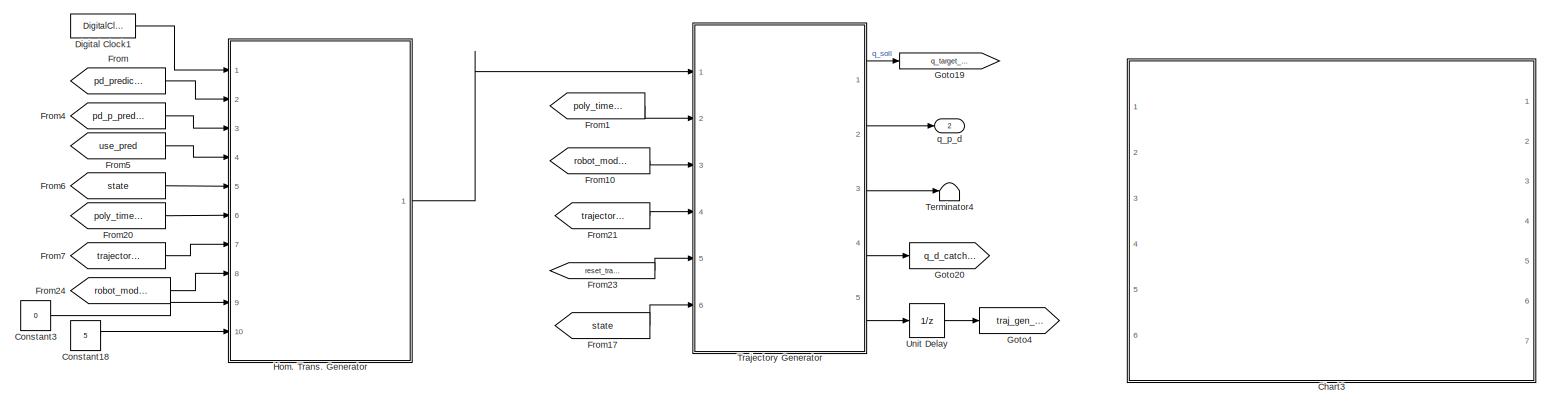
[diagram: root canvas - part 1/6, top center region]
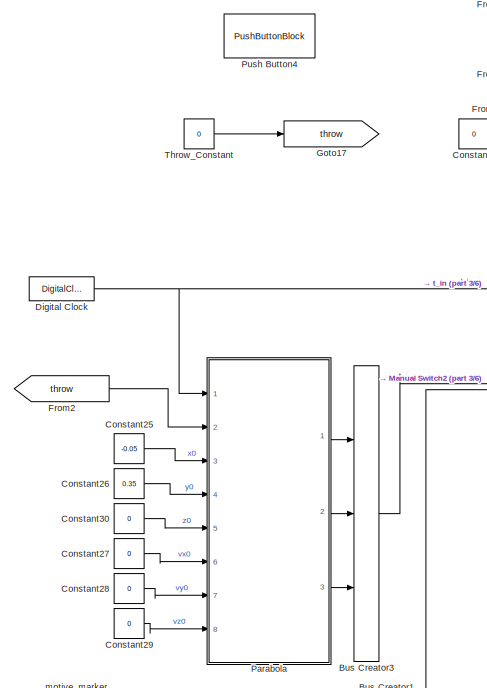
[diagram: root canvas - part 2/6, top left region]
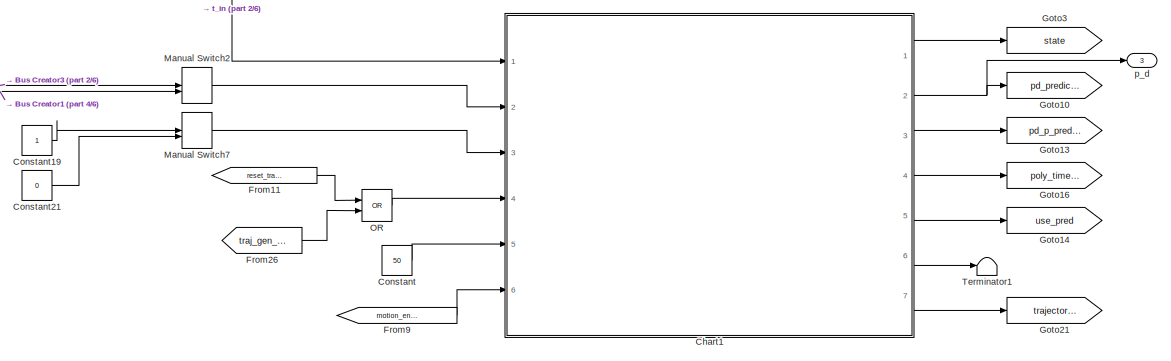
[diagram: root canvas - part 3/6, central region]
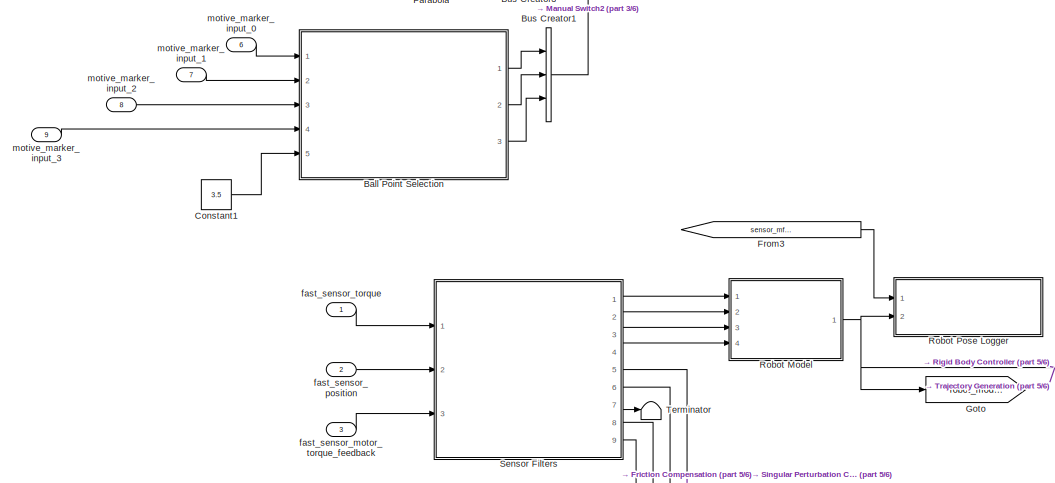
[diagram: root canvas - part 4/6, middle left region]
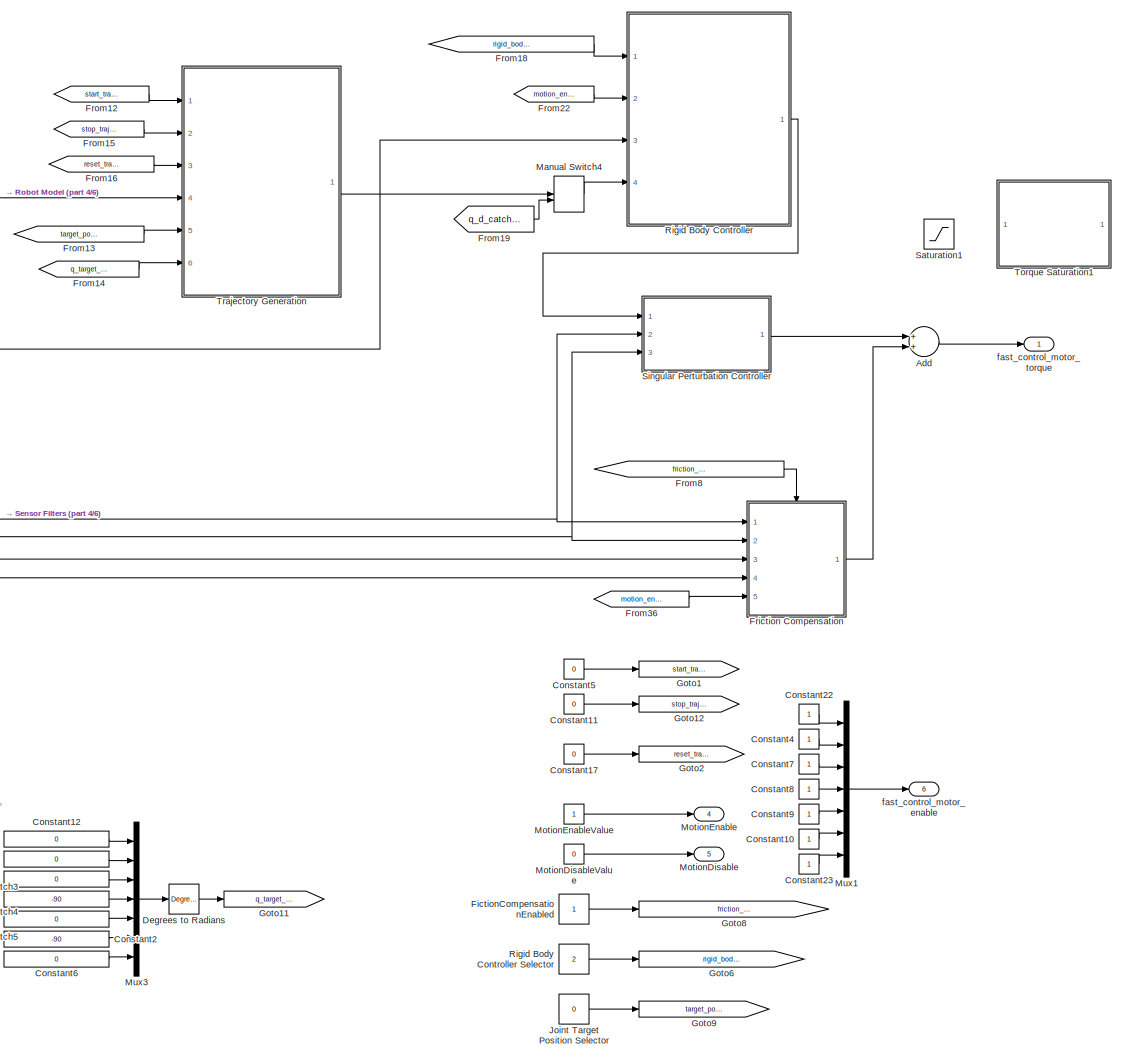
[diagram: root canvas - part 5/6, bottom right region]
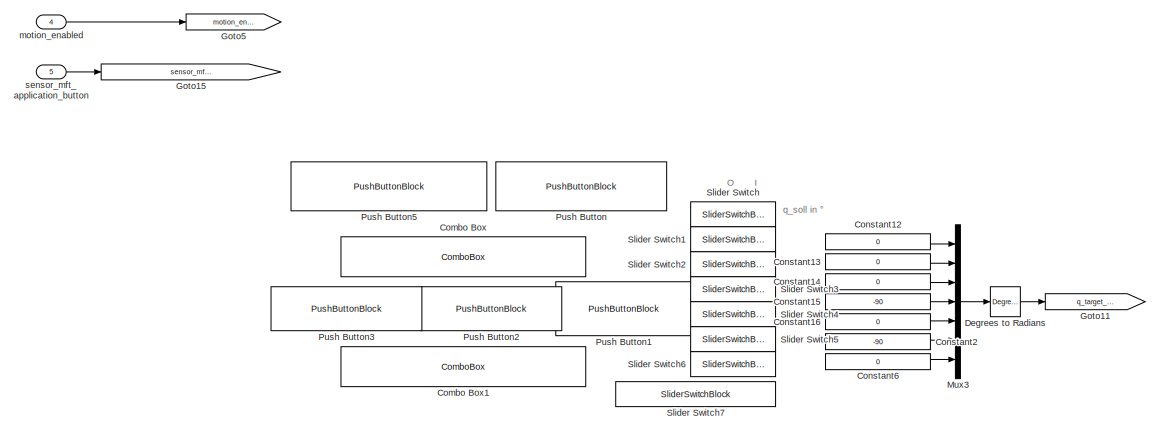
[diagram: root canvas - part 6/6, bottom center region]
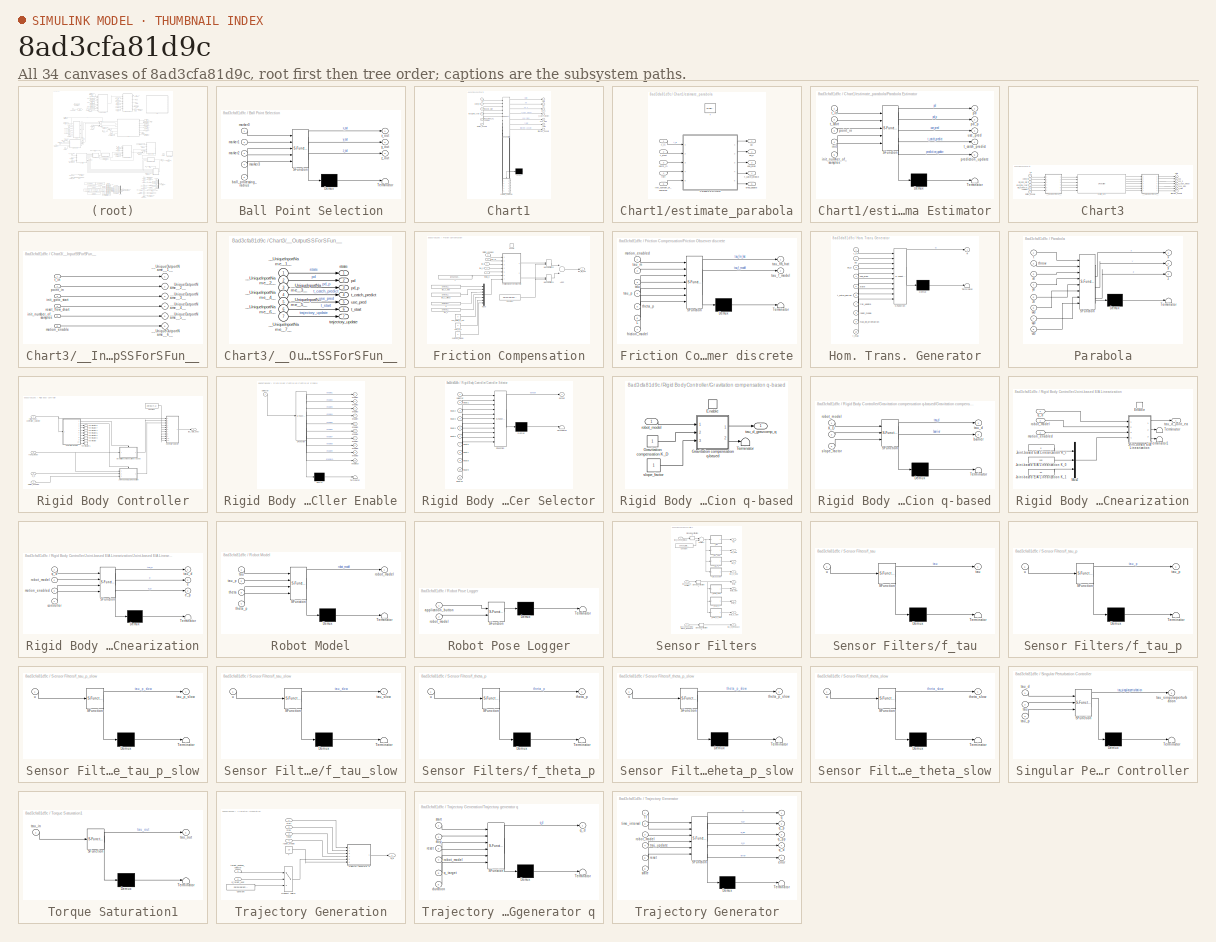
[diagram: thumbnail index - all 34 canvases of the model, root first then tree order]
MODEL slx_8ad3cfa81d9c
KIND model
CONFIG AbsTol = auto
CONFIG EnableMultiTasking = off
CONFIG FixedStep = param_controller.T_a
CONFIG InitFcn = iiwa_joint_trajectoryfollowingcontrol_rigid_parameters;
CONFIG MaxStep = auto
CONFIG MinStep = auto
CONFIG RelTol = 1e-3
CONFIG SampleTimeConstraint = Unconstrained
CONFIG Solver = FixedStepAuto
CONFIG SolverName = FixedStepAuto
CONFIG StartTime = 0.0
CONFIG StopTime = 10.0
BLOCK [Sum] Add
  InputSameDT = off
  OutDataTypeStr = Inherit: Inherit via internal rule
  Ports = [2, 1]
  SaturateOnIntegerOverflow = off
BLOCK [SubSystem] Ball Point Selection
  ErrorFcn = Stateflow.Translate.translate
  PermitHierarchicalResolution = ExplicitOnly
  Ports = [5, 3]
  RequestExecContextInheritance = off
  SFBlockType = MATLAB Function
  TreatAsAtomicUnit = on
BLOCK [Demux] Ball Point Selection/ Demux 
  DisplayOption = bar
  Outputs = 1
  Ports = [1, 1]
BLOCK [S-Function] Ball Point Selection/ SFunction 
  EnableBusSupport = on
  FunctionName = sf_sfun
  PortCounts = [5 4]
  Ports = [5, 4]
  SFcnIsStateOwnerBlock = off
  SFunctionDeploymentMode = off
  Tag = Stateflow S-Function controller_ballcatcher 2
BLOCK [Terminator] Ball Point Selection/ Terminator 
BLOCK [Inport] Ball Point Selection/ball_processing_radius
  IconDisplay = Port number
  Port = 5
BLOCK [Inport] Ball Point Selection/marker0
  IconDisplay = Port number
BLOCK [Inport] Ball Point Selection/marker1
  IconDisplay = Port number
  Port = 2
BLOCK [Inport] Ball Point Selection/marker2
  IconDisplay = Port number
  Port = 3
BLOCK [Inport] Ball Point Selection/marker3
  IconDisplay = Port number
  Port = 4
BLOCK [Outport] Ball Point Selection/x_out
  IconDisplay = Port number
BLOCK [Outport] Ball Point Selection/y_out
  IconDisplay = Port number
  Port = 2
BLOCK [Outport] Ball Point Selection/z_out
  IconDisplay = Port number
  Port = 3
BLOCK [BusCreator] Bus Creator1
  DisplayOption = bar
  InheritFromInputs = on
  Inputs = 3
  Ports = [3, 1]
BLOCK [BusCreator] Bus Creator3
  DisplayOption = bar
  InheritFromInputs = on
  Inputs = 3
  Ports = [3, 1]
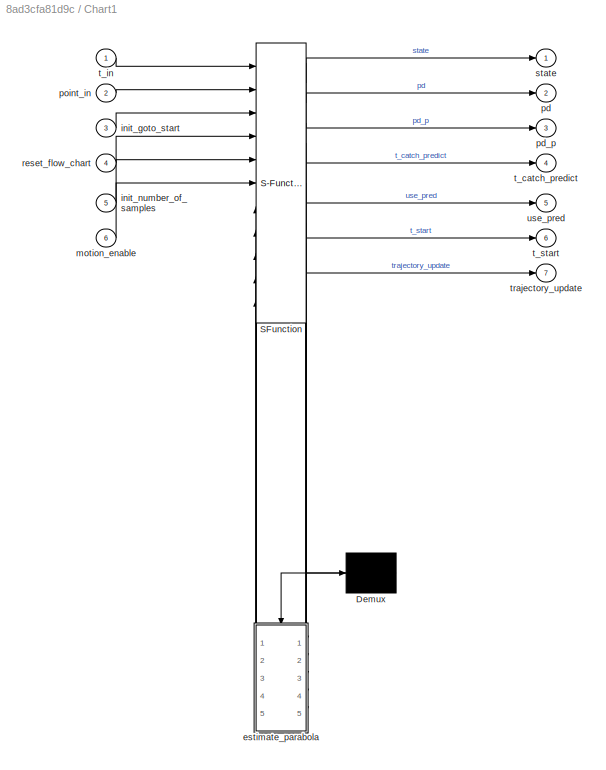
BLOCK [SubSystem] Chart1
  ErrorFcn = Stateflow.Translate.translate
  PermitHierarchicalResolution = ExplicitOnly
  Ports = [6, 7]
  RequestExecContextInheritance = off
  SFBlockType = Chart
  TreatAsAtomicUnit = on
BLOCK [Demux] Chart1/ Demux 
  DisplayOption = bar
  Outputs = 1
  Ports = [1, 1]
BLOCK [S-Function] Chart1/ SFunction 
  EnableBusSupport = on
  FunctionName = sf_sfun
  Parameters = positions
  PortCounts = [11 13]
  Ports = [11, 13]
  SFcnIsStateOwnerBlock = off
  SFunctionDeploymentMode = off
  Tag = Stateflow S-Function controller_ballcatcher 9
BLOCK [SubSystem] Chart1/estimate_parabola
  Ports = [5, 5, 0, 1]
  PreDeleteFcn = Stateflow.SLINSF.SimulinkMan.removePreDeleteFcn
  RequestExecContextInheritance = off
  UndoDeleteFcn = Stateflow.SLINSF.SimulinkMan.restorePreDeleteFcn
BLOCK [SubSystem] Chart1/estimate_parabola/Parabola Estimator
  ErrorFcn = Stateflow.Translate.translate
  PermitHierarchicalResolution = ExplicitOnly
  Ports = [5, 5]
  RequestExecContextInheritance = off
  SFBlockType = MATLAB Function
  TreatAsAtomicUnit = on
BLOCK [Demux] Chart1/estimate_parabola/Parabola Estimator/ Demux 
  DisplayOption = bar
  Outputs = 1
  Ports = [1, 1]
BLOCK [S-Function] Chart1/estimate_parabola/Parabola Estimator/ SFunction 
  EnableBusSupport = off
  FunctionName = sf_sfun
  Parameters = estimator_init_struct,height_of_catch,timing
  PortCounts = [5 6]
  Ports = [5, 6]
  SFcnIsStateOwnerBlock = off
  SFunctionDeploymentMode = off
  Tag = Stateflow S-Function controller_ballcatcher 18
BLOCK [Terminator] Chart1/estimate_parabola/Parabola Estimator/ Terminator 
BLOCK [Inport] Chart1/estimate_parabola/Parabola Estimator/init
  IconDisplay = Port number
  Port = 4
BLOCK [Inport] Chart1/estimate_parabola/Parabola Estimator/init_number_of_samples
  IconDisplay = Port number
  Port = 5
BLOCK [Outport] Chart1/estimate_parabola/Parabola Estimator/pd
  IconDisplay = Port number
BLOCK [Outport] Chart1/estimate_parabola/Parabola Estimator/pd_p
  IconDisplay = Port number
  Port = 2
BLOCK [Inport] Chart1/estimate_parabola/Parabola Estimator/point_in
  IconDisplay = Port number
  Port = 3
BLOCK [Outport] Chart1/estimate_parabola/Parabola Estimator/prediction_update
  IconDisplay = Port number
  Port = 5
  VectorParamsAs1DForOutWhenUnconnected = on
BLOCK [Outport] Chart1/estimate_parabola/Parabola Estimator/t_catch_predict
  IconDisplay = Port number
  Port = 4
BLOCK [Inport] Chart1/estimate_parabola/Parabola Estimator/t_in
  IconDisplay = Port number
BLOCK [Inport] Chart1/estimate_parabola/Parabola Estimator/t_start
  IconDisplay = Port number
  Port = 2
BLOCK [Outport] Chart1/estimate_parabola/Parabola Estimator/use_pred
  IconDisplay = Port number
  Port = 3
BLOCK [TriggerPort] Chart1/estimate_parabola/f
  CopyFcn = Stateflow.SLINSF.SimulinkMan.removeBlockPreDeleteFcn
  Ports = []
  PreDeleteFcn = Stateflow.SLINSF.SimulinkMan.unsafePredeleteFcn
  StatesWhenEnabling = held
  TriggerType = function-call
  VariantControl = (inherit)
BLOCK [Inport] Chart1/estimate_parabola/init
  IconDisplay = Port number
  OutDataTypeStr = double
  Port = 4
  PortDimensions = 1
  SignalType = real
  VarSizeSig = No
BLOCK [Inport] Chart1/estimate_parabola/init_number_of_samples
  IconDisplay = Port number
  OutDataTypeStr = double
  Port = 5
  PortDimensions = 1
  SignalType = real
  VarSizeSig = No
BLOCK [Outport] Chart1/estimate_parabola/pd
  IconDisplay = Port number
  PortDimensions = 3
  VectorParamsAs1DForOutWhenUnconnected = on
BLOCK [Outport] Chart1/estimate_parabola/pd_p
  IconDisplay = Port number
  Port = 2
  PortDimensions = 3
  VectorParamsAs1DForOutWhenUnconnected = on
BLOCK [Inport] Chart1/estimate_parabola/point_in
  IconDisplay = Port number
  OutDataTypeStr = double
  Port = 3
  PortDimensions = 3
  SignalType = real
  VarSizeSig = No
BLOCK [Outport] Chart1/estimate_parabola/pred_update
  IconDisplay = Port number
  Port = 5
  VectorParamsAs1DForOutWhenUnconnected = on
BLOCK [Outport] Chart1/estimate_parabola/t_catch_predict
  IconDisplay = Port number
  Port = 4
  PortDimensions = [1,2]
  VectorParamsAs1DForOutWhenUnconnected = on
BLOCK [Inport] Chart1/estimate_parabola/t_in
  IconDisplay = Port number
  OutDataTypeStr = double
  PortDimensions = 1
  SignalType = real
  VarSizeSig = No
BLOCK [Inport] Chart1/estimate_parabola/t_start
  IconDisplay = Port number
  OutDataTypeStr = double
  Port = 2
  PortDimensions = 1
  SignalType = real
  VarSizeSig = No
BLOCK [Outport] Chart1/estimate_parabola/use_pred
  IconDisplay = Port number
  Port = 3
  PortDimensions = 1
  VectorParamsAs1DForOutWhenUnconnected = on
BLOCK [Inport] Chart1/init_goto_start
  IconDisplay = Port number
  Port = 3
BLOCK [Inport] Chart1/init_number_of_samples
  IconDisplay = Port number
  Port = 5
BLOCK [Inport] Chart1/motion_enable
  IconDisplay = Port number
  Port = 6
BLOCK [Outport] Chart1/pd
  IconDisplay = Port number
  Port = 2
  VectorParamsAs1DForOutWhenUnconnected = on
BLOCK [Outport] Chart1/pd_p
  IconDisplay = Port number
  Port = 3
  VectorParamsAs1DForOutWhenUnconnected = on
BLOCK [Inport] Chart1/point_in
  IconDisplay = Port number
  Port = 2
BLOCK [Inport] Chart1/reset_flow_chart
  IconDisplay = Port number
  Port = 4
BLOCK [Outport] Chart1/state
  IconDisplay = Port number
  VectorParamsAs1DForOutWhenUnconnected = on
BLOCK [Outport] Chart1/t_catch_predict
  IconDisplay = Port number
  Port = 4
  VectorParamsAs1DForOutWhenUnconnected = on
BLOCK [Inport] Chart1/t_in
  IconDisplay = Port number
BLOCK [Outport] Chart1/t_start
  IconDisplay = Port number
  Port = 6
  VectorParamsAs1DForOutWhenUnconnected = on
BLOCK [Outport] Chart1/trajectory_update
  IconDisplay = Port number
  Port = 7
  VectorParamsAs1DForOutWhenUnconnected = on
BLOCK [Outport] Chart1/use_pred
  IconDisplay = Port number
  Port = 5
  VectorParamsAs1DForOutWhenUnconnected = on
BLOCK [SubSystem] Chart3
  Commented = on
  Ports = [6, 7]
  RequestExecContextInheritance = off
BLOCK [S-Function] Chart3/Chart2_sfcn
  CopyFcn = if ~strcmp(get_param(gcb,'Linkstatus'),'none') && ...\n~strcmp(get_param(gcb,'Linkstatus'),'implicit')      \n  set_param(gcb,'LinkStatus','none');                \nend
  EnableBusSupport = off
  FunctionName = Chart2_sf
  Ports = [6, 7]
  SFcnIsStateOwnerBlock = off
  SFunctionDeploymentMode = off
BLOCK [SubSystem] Chart3/__InputSSForSFun__
  PermitHierarchicalResolution = ExplicitOnly
  Ports = [6, 6]
  RequestExecContextInheritance = off
BLOCK [Outport] Chart3/__InputSSForSFun__/__UniqueOutportName__1__
  IconDisplay = Port number
BLOCK [Outport] Chart3/__InputSSForSFun__/__UniqueOutportName__2__
  IconDisplay = Port number
  Port = 2
BLOCK [Outport] Chart3/__InputSSForSFun__/__UniqueOutportName__3__
  IconDisplay = Port number
  Port = 3
BLOCK [Outport] Chart3/__InputSSForSFun__/__UniqueOutportName__4__
  IconDisplay = Port number
  Port = 4
BLOCK [Outport] Chart3/__InputSSForSFun__/__UniqueOutportName__5__
  IconDisplay = Port number
  Port = 5
BLOCK [Outport] Chart3/__InputSSForSFun__/__UniqueOutportName__6__
  IconDisplay = Port number
  Port = 6
BLOCK [Inport] Chart3/__InputSSForSFun__/init_goto_start
  IconDisplay = Port number
  Port = 3
BLOCK [Inport] Chart3/__InputSSForSFun__/init_number_of_samples
  IconDisplay = Port number
  Port = 5
BLOCK [Inport] Chart3/__InputSSForSFun__/motion_enable
  IconDisplay = Port number
  Port = 6
BLOCK [Inport] Chart3/__InputSSForSFun__/point_in
  IconDisplay = Port number
  Port = 2
BLOCK [Inport] Chart3/__InputSSForSFun__/reset_flow_chart
  IconDisplay = Port number
  Port = 4
BLOCK [Inport] Chart3/__InputSSForSFun__/t_in
  IconDisplay = Port number
BLOCK [SubSystem] Chart3/__OutputSSForSFun__
  PermitHierarchicalResolution = ExplicitOnly
  Ports = [7, 7]
  RequestExecContextInheritance = off
BLOCK [Inport] Chart3/__OutputSSForSFun__/__UniqueInportName__1__
  IconDisplay = Port number
BLOCK [Inport] Chart3/__OutputSSForSFun__/__UniqueInportName__2__
  IconDisplay = Port number
  Port = 2
BLOCK [Inport] Chart3/__OutputSSForSFun__/__UniqueInportName__3__
  IconDisplay = Port number
  Port = 3
BLOCK [Inport] Chart3/__OutputSSForSFun__/__UniqueInportName__4__
  IconDisplay = Port number
  Port = 4
BLOCK [Inport] Chart3/__OutputSSForSFun__/__UniqueInportName__5__
  IconDisplay = Port number
  Port = 5
BLOCK [Inport] Chart3/__OutputSSForSFun__/__UniqueInportName__6__
  IconDisplay = Port number
  Port = 6
BLOCK [Inport] Chart3/__OutputSSForSFun__/__UniqueInportName__7__
  IconDisplay = Port number
  Port = 7
BLOCK [Outport] Chart3/__OutputSSForSFun__/pd
  IconDisplay = Port number
  Port = 2
  VectorParamsAs1DForOutWhenUnconnected = on
BLOCK [Outport] Chart3/__OutputSSForSFun__/pd_p
  IconDisplay = Port number
  Port = 3
  VectorParamsAs1DForOutWhenUnconnected = on
BLOCK [Outport] Chart3/__OutputSSForSFun__/state
  IconDisplay = Port number
  VectorParamsAs1DForOutWhenUnconnected = on
BLOCK [Outport] Chart3/__OutputSSForSFun__/t_catch_predict
  IconDisplay = Port number
  Port = 4
  VectorParamsAs1DForOutWhenUnconnected = on
BLOCK [Outport] Chart3/__OutputSSForSFun__/t_start
  IconDisplay = Port number
  Port = 6
  VectorParamsAs1DForOutWhenUnconnected = on
BLOCK [Outport] Chart3/__OutputSSForSFun__/trajectory_update
  IconDisplay = Port number
  Port = 7
  VectorParamsAs1DForOutWhenUnconnected = on
BLOCK [Outport] Chart3/__OutputSSForSFun__/use_pred
  IconDisplay = Port number
  Port = 5
  VectorParamsAs1DForOutWhenUnconnected = on
BLOCK [Inport] Chart3/init_goto_start
  IconDisplay = Port number
  Port = 3
BLOCK [Inport] Chart3/init_number_of_samples
  IconDisplay = Port number
  Port = 5
BLOCK [Inport] Chart3/motion_enable
  IconDisplay = Port number
  Port = 6
BLOCK [Outport] Chart3/pd
  IconDisplay = Port number
  Port = 2
  VectorParamsAs1DForOutWhenUnconnected = on
BLOCK [Outport] Chart3/pd_p
  IconDisplay = Port number
  Port = 3
  VectorParamsAs1DForOutWhenUnconnected = on
BLOCK [Inport] Chart3/point_in
  IconDisplay = Port number
  Port = 2
BLOCK [Inport] Chart3/reset_flow_chart
  IconDisplay = Port number
  Port = 4
BLOCK [Outport] Chart3/state
  IconDisplay = Port number
  VectorParamsAs1DForOutWhenUnconnected = on
BLOCK [Outport] Chart3/t_catch_predict
  IconDisplay = Port number
  Port = 4
  VectorParamsAs1DForOutWhenUnconnected = on
BLOCK [Inport] Chart3/t_in
  IconDisplay = Port number
BLOCK [Outport] Chart3/t_start
  IconDisplay = Port number
  Port = 6
  VectorParamsAs1DForOutWhenUnconnected = on
BLOCK [Outport] Chart3/trajectory_update
  IconDisplay = Port number
  Port = 7
  VectorParamsAs1DForOutWhenUnconnected = on
BLOCK [Outport] Chart3/use_pred
  IconDisplay = Port number
  Port = 5
  VectorParamsAs1DForOutWhenUnconnected = on
BLOCK [ComboBox] Combo Box
  SelectedLabel = 2: Joint-based E/A Linearization
  WebBlockId = 803
BLOCK [ComboBox] Combo Box1
  SelectedLabel = 0: Candle position
  WebBlockId = 804
BLOCK [Constant] Constant
  Value = 50
BLOCK [Constant] Constant1
  Value = 3.5
BLOCK [Constant] Constant10
BLOCK [Constant] Constant11
  Value = 0
BLOCK [Constant] Constant12
  Value = 0
BLOCK [Constant] Constant13
  Value = 0
BLOCK [Constant] Constant14
  Value = 0
BLOCK [Constant] Constant15
  Value = -90
BLOCK [Constant] Constant16
  Value = 0
BLOCK [Constant] Constant17
  Value = 0
BLOCK [Constant] Constant18
  Value = 5
BLOCK [Constant] Constant19
BLOCK [Constant] Constant2
  Value = -90
BLOCK [Constant] Constant21
  Value = 0
BLOCK [Constant] Constant22
BLOCK [Constant] Constant23
BLOCK [Constant] Constant25
  Value = -0.05
BLOCK [Constant] Constant26
  Value = 0.35
BLOCK [Constant] Constant27
  Value = 0
BLOCK [Constant] Constant28
  Value = 0
BLOCK [Constant] Constant29
  Value = 0
BLOCK [Constant] Constant3
  Value = 0
BLOCK [Constant] Constant30
  Value = 0
BLOCK [Constant] Constant4
BLOCK [Constant] Constant5
  Value = 0
BLOCK [Constant] Constant6
  Value = 0
BLOCK [Constant] Constant7
BLOCK [Constant] Constant8
BLOCK [Constant] Constant9
BLOCK [Reference] Degrees to Radians  REF=simulink_extras/Transformations/Degrees to
Radians
  Ports = [1, 1]
  SourceBlock = simulink_extras/Transformations/Degrees to\nRadians
  SourceProductBaseCode = SL
  SourceType = DegreesToRadians
BLOCK [DigitalClock] Digital Clock
  SampleTime = timing.T_optitrack
BLOCK [DigitalClock] Digital Clock1
  SampleTime = timing.T_iiwa
BLOCK [Constant] FictionCompensationEnabled
BLOCK [SubSystem] Friction Compensation
  Ports = [5, 1, 1]
  RequestExecContextInheritance = off
BLOCK [Sum] Friction Compensation/Add2
  InputSameDT = off
  OutDataTypeStr = Inherit: Inherit via internal rule
  Ports = [2, 1]
  SaturateOnIntegerOverflow = off
BLOCK [Constant] Friction Compensation/Constant
  Value = zeros(param_robot.n,1)
BLOCK [Constant] Friction Compensation/E
  Value = [zeros(6,1);120]
BLOCK [EnablePort] Friction Compensation/Enable
  Ports = []
BLOCK [SubSystem] Friction Compensation/Friction Observer discrete
  ErrorFcn = Stateflow.Translate.translate
  PermitHierarchicalResolution = ExplicitOnly
  Ports = [7, 2]
  RequestExecContextInheritance = off
  SFBlockType = MATLAB Function
  TreatAsAtomicUnit = on
BLOCK [Demux] Friction Compensation/Friction Observer discrete/ Demux 
  DisplayOption = bar
  Outputs = 1
  Ports = [1, 1]
BLOCK [S-Function] Friction Compensation/Friction Observer discrete/ SFunction 
  EnableBusSupport = on
  FunctionName = sf_sfun
  Parameters = param_controller,param_robot
  PortCounts = [7 3]
  Ports = [7, 3]
  SFcnIsStateOwnerBlock = off
  SFunctionDeploymentMode = off
  Tag = Stateflow S-Function controller_ballcatcher 20
BLOCK [Terminator] Friction Compensation/Friction Observer discrete/ Terminator 
BLOCK [Inport] Friction Compensation/Friction Observer discrete/L
  IconDisplay = Port number
  Port = 6
BLOCK [Inport] Friction Compensation/Friction Observer discrete/friction_model
  IconDisplay = Port number
  Port = 7
BLOCK [Inport] Friction Compensation/Friction Observer discrete/motion_enabled
  IconDisplay = Port number
BLOCK [Inport] Friction Compensation/Friction Observer discrete/tau
  IconDisplay = Port number
  Port = 3
BLOCK [Outport] Friction Compensation/Friction Observer discrete/tau_f_model
  IconDisplay = Port number
  Port = 2
BLOCK [Outport] Friction Compensation/Friction Observer discrete/tau_fm_hat
  IconDisplay = Port number
BLOCK [Inport] Friction Compensation/Friction Observer discrete/tau_m
  IconDisplay = Port number
  Port = 2
BLOCK [Inport] Friction Compensation/Friction Observer discrete/tau_p
  IconDisplay = Port number
  Port = 4
BLOCK [Inport] Friction Compensation/Friction Observer discrete/theta_p
  IconDisplay = Port number
  Port = 5
BLOCK [Constant] Friction Compensation/L
  Value = [200;200;300;300;500;1000;1000]
BLOCK [ManualSwitch] Friction Compensation/Manual Switch2
BLOCK [ManualSwitch] Friction Compensation/Manual Switch4
  CurrentSetting = 0
BLOCK [Mux] Friction Compensation/Mux5
  DisplayOption = bar
  Inputs = 7
  Ports = [7, 1]
BLOCK [Inport] Friction Compensation/motion_enabled
  IconDisplay = Port number
  Port = 5
BLOCK [Constant] Friction Compensation/subtract_model
  Value = 0
BLOCK [Inport] Friction Compensation/tau
  IconDisplay = Port number
BLOCK [Constant] Friction Compensation/tau_c_minus
  Value = [zeros(6,1);0.28]
BLOCK [Constant] Friction Compensation/tau_c_plus
  Value = [zeros(6,1);0.2]
BLOCK [Outport] Friction Compensation/tau_fm_hat
  IconDisplay = Port number
BLOCK [Inport] Friction Compensation/tau_m
  IconDisplay = Port number
  Port = 4
BLOCK [Inport] Friction Compensation/tau_p
  IconDisplay = Port number
  Port = 2
BLOCK [Constant] Friction Compensation/tau_v
  Value = [zeros(6,1);0.5]
BLOCK [Inport] Friction Compensation/theta_p
  IconDisplay = Port number
  Port = 3
BLOCK [Constant] Friction Compensation/use_q_p
  Value = 0
BLOCK [Constant] Friction Compensation/use_theta_p_hat
  Value = 0
BLOCK [From] From
  GotoTag = pd_predicted
BLOCK [From] From1
  GotoTag = poly_timepoints
BLOCK [From] From10
  GotoTag = robot_model
BLOCK [From] From11
  GotoTag = reset_trajectory
BLOCK [From] From12
  GotoTag = start_trajectory
BLOCK [From] From13
  GotoTag = target_position_selector
BLOCK [From] From14
  GotoTag = q_target_user
BLOCK [From] From15
  GotoTag = stop_trajectory
BLOCK [From] From16
  GotoTag = reset_trajectory
BLOCK [From] From17
  GotoTag = state
BLOCK [From] From18
  GotoTag = rigid_body_controller_selector
BLOCK [From] From19
  GotoTag = q_d_catcher
BLOCK [From] From2
  GotoTag = throw
BLOCK [From] From20
  GotoTag = poly_timepoints
BLOCK [From] From21
  GotoTag = trajectory_update
BLOCK [From] From22
  GotoTag = motion_enabled
BLOCK [From] From23
  GotoTag = reset_trajectory
BLOCK [From] From24
  GotoTag = robot_model
BLOCK [From] From26
  GotoTag = traj_gen_error
BLOCK [From] From3
  GotoTag = sensor_mft_application_button
BLOCK [From] From36
  GotoTag = motion_enabled
BLOCK [From] From4
  GotoTag = pd_p_predicted
BLOCK [From] From5
  GotoTag = use_pred
BLOCK [From] From6
  GotoTag = state
BLOCK [From] From7
  GotoTag = trajectory_update
BLOCK [From] From8
  GotoTag = friction_compensation_enabled
BLOCK [From] From9
  GotoTag = motion_enabled
BLOCK [Goto] Goto
  GotoTag = robot_model
BLOCK [Goto] Goto1
  GotoTag = start_trajectory
BLOCK [Goto] Goto10
  GotoTag = pd_predicted
BLOCK [Goto] Goto11
  Commented = on
  GotoTag = q_target_user
BLOCK [Goto] Goto12
  GotoTag = stop_trajectory
BLOCK [Goto] Goto13
  GotoTag = pd_p_predicted
BLOCK [Goto] Goto14
  GotoTag = use_pred
BLOCK [Goto] Goto15
  GotoTag = sensor_mft_application_button
BLOCK [Goto] Goto16
  GotoTag = poly_timepoints
BLOCK [Goto] Goto17
  GotoTag = throw
BLOCK [Goto] Goto19
  GotoTag = q_target_user
BLOCK [Goto] Goto2
  GotoTag = reset_trajectory
BLOCK [Goto] Goto20
  GotoTag = q_d_catcher
BLOCK [Goto] Goto21
  GotoTag = trajectory_update
BLOCK [Goto] Goto3
  GotoTag = state
BLOCK [Goto] Goto4
  GotoTag = traj_gen_error
BLOCK [Goto] Goto5
  GotoTag = motion_enabled
BLOCK [Goto] Goto6
  GotoTag = rigid_body_controller_selector
BLOCK [Goto] Goto8
  GotoTag = friction_compensation_enabled
BLOCK [Goto] Goto9
  GotoTag = target_position_selector
BLOCK [SubSystem] Hom. Trans. Generator
  ErrorFcn = Stateflow.Translate.translate
  PermitHierarchicalResolution = ExplicitOnly
  Ports = [10, 1]
  RequestExecContextInheritance = off
  SFBlockType = MATLAB Function
  TreatAsAtomicUnit = on
BLOCK [Demux] Hom. Trans. Generator/ Demux 
  DisplayOption = bar
  Outputs = 1
  Ports = [1, 1]
BLOCK [S-Function] Hom. Trans. Generator/ SFunction 
  EnableBusSupport = on
  FunctionName = sf_sfun
  PortCounts = [10 2]
  Ports = [10, 2]
  SFcnIsStateOwnerBlock = off
  SFunctionDeploymentMode = off
  Tag = Stateflow S-Function controller_ballcatcher 8
BLOCK [Terminator] Hom. Trans. Generator/ Terminator 
BLOCK [Outport] Hom. Trans. Generator/Tf
  IconDisplay = Port number
  VectorParamsAs1DForOutWhenUnconnected = on
BLOCK [Inport] Hom. Trans. Generator/max_ee_orientation
  IconDisplay = Port number
  Port = 9
BLOCK [Inport] Hom. Trans. Generator/pd
  IconDisplay = Port number
  Port = 2
BLOCK [Inport] Hom. Trans. Generator/pd_p
  IconDisplay = Port number
  Port = 3
BLOCK [Inport] Hom. Trans. Generator/r_max
  IconDisplay = Port number
  Port = 10
BLOCK [Inport] Hom. Trans. Generator/robot_model
  IconDisplay = Port number
  Port = 8
BLOCK [Inport] Hom. Trans. Generator/state
  IconDisplay = Port number
  Port = 5
BLOCK [Inport] Hom. Trans. Generator/t_catch_period
  IconDisplay = Port number
  Port = 6
BLOCK [Inport] Hom. Trans. Generator/t_in
  IconDisplay = Port number
BLOCK [Inport] Hom. Trans. Generator/traj_update
  IconDisplay = Port number
  Port = 7
BLOCK [Inport] Hom. Trans. Generator/use_pred
  IconDisplay = Port number
  Port = 4
BLOCK [Constant] Joint Target Position Selector
  OutDataTypeStr = uint32
  Value = 0
BLOCK [ManualSwitch] Manual Switch2
BLOCK [ManualSwitch] Manual Switch4
  CurrentSetting = 0
BLOCK [ManualSwitch] Manual Switch7
  CurrentSetting = 0
BLOCK [Outport] MotionDisable
  IconDisplay = Port number
  Port = 5
BLOCK [Constant] MotionDisableValue
  Value = 0
BLOCK [Outport] MotionEnable
  IconDisplay = Port number
  Port = 4
BLOCK [Constant] MotionEnableValue
BLOCK [Mux] Mux1
  DisplayOption = bar
  Inputs = 7
  Ports = [7, 1]
BLOCK [Mux] Mux3
  DisplayOption = bar
  Inputs = 7
  Ports = [7, 1]
BLOCK [Logic] OR
  AllPortsSameDT = off
  IconShape = distinctive
  Operator = OR
  OutDataTypeStr = boolean
  Ports = [2, 1]
BLOCK [SubSystem] Parabola
  ErrorFcn = Stateflow.Translate.translate
  PermitHierarchicalResolution = ExplicitOnly
  Ports = [8, 3]
  RequestExecContextInheritance = off
  SFBlockType = MATLAB Function
  TreatAsAtomicUnit = on
BLOCK [Demux] Parabola/ Demux 
  DisplayOption = bar
  Outputs = 1
  Ports = [1, 1]
BLOCK [S-Function] Parabola/ SFunction 
  EnableBusSupport = on
  FunctionName = sf_sfun
  Parameters = optitrack_data,param_controller,timing
  PortCounts = [8 4]
  Ports = [8, 4]
  SFcnIsStateOwnerBlock = off
  SFunctionDeploymentMode = off
  Tag = Stateflow S-Function controller_ballcatcher 1
BLOCK [Terminator] Parabola/ Terminator 
BLOCK [Inport] Parabola/t
  IconDisplay = Port number
BLOCK [Inport] Parabola/throw
  IconDisplay = Port number
  Port = 2
BLOCK [Inport] Parabola/vx0
  IconDisplay = Port number
  Port = 6
BLOCK [Inport] Parabola/vy0
  IconDisplay = Port number
  Port = 7
BLOCK [Inport] Parabola/vz0
  IconDisplay = Port number
  Port = 8
BLOCK [Outport] Parabola/x
  IconDisplay = Port number
BLOCK [Inport] Parabola/x0
  IconDisplay = Port number
  Port = 3
BLOCK [Outport] Parabola/y
  IconDisplay = Port number
  Port = 2
BLOCK [Inport] Parabola/y0
  IconDisplay = Port number
  Port = 4
BLOCK [Outport] Parabola/z
  IconDisplay = Port number
  Port = 3
  VectorParamsAs1DForOutWhenUnconnected = on
BLOCK [Inport] Parabola/z0
  IconDisplay = Port number
  Port = 5
BLOCK [PushButtonBlock] Push Button
  ButtonText = Motion disable
  WebBlockId = 1354
BLOCK [PushButtonBlock] Push Button1
  ButtonText = Reset Trajectory
  WebBlockId = 1355
BLOCK [PushButtonBlock] Push Button2
  ButtonText = Stop trajectory
  WebBlockId = 1030
BLOCK [PushButtonBlock] Push Button3
  ButtonText = Start trajectory
  WebBlockId = 1026
BLOCK [PushButtonBlock] Push Button4
  ButtonText = Throw
  WebBlockId = 2019
BLOCK [PushButtonBlock] Push Button5
  ButtonText = Motion enable
  WebBlockId = 1353
BLOCK [SubSystem] Rigid Body Controller
  Ports = [4, 1]
  RequestExecContextInheritance = off
BLOCK [Constant] Rigid Body Controller Selector
  OutDataTypeStr = uint32
  Value = 2
BLOCK [Constant] Rigid Body Controller/Constant
  Value = zeros(7,1)
BLOCK [SubSystem] Rigid Body Controller/Controller Enable
  ErrorFcn = Stateflow.Translate.translate
  PermitHierarchicalResolution = ExplicitOnly
  Ports = [1, 10]
  RequestExecContextInheritance = off
  SFBlockType = MATLAB Function
  TreatAsAtomicUnit = on
BLOCK [Demux] Rigid Body Controller/Controller Enable/ Demux 
  DisplayOption = bar
  Outputs = 1
  Ports = [1, 1]
BLOCK [S-Function] Rigid Body Controller/Controller Enable/ SFunction 
  EnableBusSupport = on
  FunctionName = sf_sfun
  PortCounts = [1 11]
  Ports = [1, 11]
  SFcnIsStateOwnerBlock = off
  SFunctionDeploymentMode = off
  Tag = Stateflow S-Function controller_ballcatcher 28
BLOCK [Terminator] Rigid Body Controller/Controller Enable/ Terminator 
BLOCK [Outport] Rigid Body Controller/Controller Enable/enable1
  IconDisplay = Port number
BLOCK [Outport] Rigid Body Controller/Controller Enable/enable10
  IconDisplay = Port number
  Port = 10
BLOCK [Outport] Rigid Body Controller/Controller Enable/enable2
  IconDisplay = Port number
  Port = 2
BLOCK [Outport] Rigid Body Controller/Controller Enable/enable3
  IconDisplay = Port number
  Port = 3
BLOCK [Outport] Rigid Body Controller/Controller Enable/enable4
  IconDisplay = Port number
  Port = 4
BLOCK [Outport] Rigid Body Controller/Controller Enable/enable5
  IconDisplay = Port number
  Port = 5
BLOCK [Outport] Rigid Body Controller/Controller Enable/enable6
  IconDisplay = Port number
  Port = 6
BLOCK [Outport] Rigid Body Controller/Controller Enable/enable7
  IconDisplay = Port number
  Port = 7
BLOCK [Outport] Rigid Body Controller/Controller Enable/enable8
  IconDisplay = Port number
  Port = 8
BLOCK [Outport] Rigid Body Controller/Controller Enable/enable9
  IconDisplay = Port number
  Port = 9
BLOCK [Inport] Rigid Body Controller/Controller Enable/selector
  IconDisplay = Port number
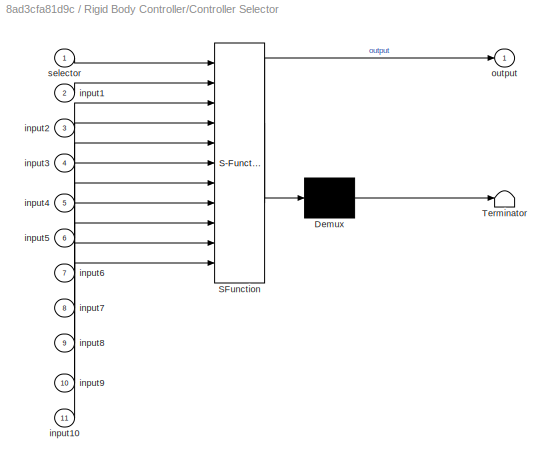
BLOCK [SubSystem] Rigid Body Controller/Controller Selector
  ErrorFcn = Stateflow.Translate.translate
  PermitHierarchicalResolution = ExplicitOnly
  Ports = [11, 1]
  RequestExecContextInheritance = off
  SFBlockType = MATLAB Function
  TreatAsAtomicUnit = on
BLOCK [Demux] Rigid Body Controller/Controller Selector/ Demux 
  DisplayOption = bar
  Outputs = 1
  Ports = [1, 1]
BLOCK [S-Function] Rigid Body Controller/Controller Selector/ SFunction 
  EnableBusSupport = on
  FunctionName = sf_sfun
  PortCounts = [11 2]
  Ports = [11, 2]
  SFcnIsStateOwnerBlock = off
  SFunctionDeploymentMode = off
  Tag = Stateflow S-Function controller_ballcatcher 29
BLOCK [Terminator] Rigid Body Controller/Controller Selector/ Terminator 
BLOCK [Inport] Rigid Body Controller/Controller Selector/input1
  IconDisplay = Port number
  Port = 2
BLOCK [Inport] Rigid Body Controller/Controller Selector/input10
  IconDisplay = Port number
  Port = 11
BLOCK [Inport] Rigid Body Controller/Controller Selector/input2
  IconDisplay = Port number
  Port = 3
BLOCK [Inport] Rigid Body Controller/Controller Selector/input3
  IconDisplay = Port number
  Port = 4
BLOCK [Inport] Rigid Body Controller/Controller Selector/input4
  IconDisplay = Port number
  Port = 5
BLOCK [Inport] Rigid Body Controller/Controller Selector/input5
  IconDisplay = Port number
  Port = 6
BLOCK [Inport] Rigid Body Controller/Controller Selector/input6
  IconDisplay = Port number
  Port = 7
BLOCK [Inport] Rigid Body Controller/Controller Selector/input7
  IconDisplay = Port number
  Port = 8
BLOCK [Inport] Rigid Body Controller/Controller Selector/input8
  IconDisplay = Port number
  Port = 9
BLOCK [Inport] Rigid Body Controller/Controller Selector/input9
  IconDisplay = Port number
  Port = 10
BLOCK [Outport] Rigid Body Controller/Controller Selector/output
  IconDisplay = Port number
BLOCK [Inport] Rigid Body Controller/Controller Selector/selector
  IconDisplay = Port number
BLOCK [SubSystem] Rigid Body Controller/Gravitation compensation q-based
  Ports = [1, 1, 1]
  RequestExecContextInheritance = off
BLOCK [EnablePort] Rigid Body Controller/Gravitation compensation q-based/Enable
  Ports = []
  StatesWhenEnabling = reset
BLOCK [Constant] Rigid Body Controller/Gravitation compensation q-based/Gravitation compensation K_D
BLOCK [SubSystem] Rigid Body Controller/Gravitation compensation q-based/Gravitation compensation q-based
  ErrorFcn = Stateflow.Translate.translate
  PermitHierarchicalResolution = ExplicitOnly
  Ports = [3, 2]
  RequestExecContextInheritance = off
  SFBlockType = MATLAB Function
  TreatAsAtomicUnit = on
BLOCK [Demux] Rigid Body Controller/Gravitation compensation q-based/Gravitation compensation q-based/ Demux 
  DisplayOption = bar
  Outputs = 1
  Ports = [1, 1]
BLOCK [S-Function] Rigid Body Controller/Gravitation compensation q-based/Gravitation compensation q-based/ SFunction 
  EnableBusSupport = on
  FunctionName = sf_sfun
  Parameters = param_nullspace,param_robot
  PortCounts = [3 3]
  Ports = [3, 3]
  SFcnIsStateOwnerBlock = off
  SFunctionDeploymentMode = off
  Tag = Stateflow S-Function controller_ballcatcher 13
BLOCK [Terminator] Rigid Body Controller/Gravitation compensation q-based/Gravitation compensation q-based/ Terminator 
BLOCK [Inport] Rigid Body Controller/Gravitation compensation q-based/Gravitation compensation q-based/K_D
  IconDisplay = Port number
  Port = 2
BLOCK [Outport] Rigid Body Controller/Gravitation compensation q-based/Gravitation compensation q-based/barrier
  IconDisplay = Port number
  Port = 2
BLOCK [Inport] Rigid Body Controller/Gravitation compensation q-based/Gravitation compensation q-based/robot_model
  IconDisplay = Port number
BLOCK [Inport] Rigid Body Controller/Gravitation compensation q-based/Gravitation compensation q-based/slope_factor
  IconDisplay = Port number
  Port = 3
BLOCK [Outport] Rigid Body Controller/Gravitation compensation q-based/Gravitation compensation q-based/tau_d
  IconDisplay = Port number
BLOCK [Terminator] Rigid Body Controller/Gravitation compensation q-based/Terminator
BLOCK [Inport] Rigid Body Controller/Gravitation compensation q-based/robot_model
  IconDisplay = Port number
BLOCK [Constant] Rigid Body Controller/Gravitation compensation q-based/slope_factor
BLOCK [Outport] Rigid Body Controller/Gravitation compensation q-based/tau_d_gravcomp_q
  IconDisplay = Port number
BLOCK [SubSystem] Rigid Body Controller/Joint-based E//A Linearization
  Ports = [3, 1, 1]
  RequestExecContextInheritance = off
BLOCK [EnablePort] Rigid Body Controller/Joint-based E//A Linearization/Enable
  Ports = []
  StatesWhenEnabling = reset
BLOCK [SubSystem] Rigid Body Controller/Joint-based E//A Linearization/Joint-based E//A Linearization
  ErrorFcn = Stateflow.Translate.translate
  PermitHierarchicalResolution = ExplicitOnly
  Ports = [4, 3]
  RequestExecContextInheritance = off
  SFBlockType = MATLAB Function
  TreatAsAtomicUnit = on
BLOCK [Constant] Rigid Body Controller/Joint-based E//A Linearization/Joint-based E//A Linearization K_0
  Value = 100
BLOCK [Constant] Rigid Body Controller/Joint-based E//A Linearization/Joint-based E//A Linearization K_1
  Value = 20
BLOCK [Constant] Rigid Body Controller/Joint-based E//A Linearization/Joint-based E//A Linearization K_I
  Value = 0
BLOCK [Demux] Rigid Body Controller/Joint-based E//A Linearization/Joint-based E//A Linearization/ Demux 
  DisplayOption = bar
  Outputs = 1
  Ports = [1, 1]
BLOCK [S-Function] Rigid Body Controller/Joint-based E//A Linearization/Joint-based E//A Linearization/ SFunction 
  EnableBusSupport = on
  FunctionName = sf_sfun
  Parameters = param_controller,param_robot
  PortCounts = [4 4]
  Ports = [4, 4]
  SFcnIsStateOwnerBlock = off
  SFunctionDeploymentMode = off
  Tag = Stateflow S-Function controller_ballcatcher 15
BLOCK [Terminator] Rigid Body Controller/Joint-based E//A Linearization/Joint-based E//A Linearization/ Terminator 
BLOCK [Inport] Rigid Body Controller/Joint-based E//A Linearization/Joint-based E//A Linearization/controller
  IconDisplay = Port number
  Port = 4
BLOCK [Outport] Rigid Body Controller/Joint-based E//A Linearization/Joint-based E//A Linearization/e
  IconDisplay = Port number
  Port = 2
BLOCK [Outport] Rigid Body Controller/Joint-based E//A Linearization/Joint-based E//A Linearization/e_p
  IconDisplay = Port number
  Port = 3
BLOCK [Inport] Rigid Body Controller/Joint-based E//A Linearization/Joint-based E//A Linearization/motion_enabled
  IconDisplay = Port number
  Port = 3
BLOCK [Inport] Rigid Body Controller/Joint-based E//A Linearization/Joint-based E//A Linearization/q_d
  IconDisplay = Port number
BLOCK [Inport] Rigid Body Controller/Joint-based E//A Linearization/Joint-based E//A Linearization/robot_model
  IconDisplay = Port number
  Port = 2
BLOCK [Outport] Rigid Body Controller/Joint-based E//A Linearization/Joint-based E//A Linearization/tau_d
  IconDisplay = Port number
BLOCK [Mux] Rigid Body Controller/Joint-based E//A Linearization/Mux2
  DisplayOption = bar
  Inputs = 3
  Ports = [3, 1]
BLOCK [Terminator] Rigid Body Controller/Joint-based E//A Linearization/Terminator
BLOCK [Terminator] Rigid Body Controller/Joint-based E//A Linearization/Terminator1
BLOCK [Inport] Rigid Body Controller/Joint-based E//A Linearization/motion_enabled
  IconDisplay = Port number
  Port = 3
BLOCK [Inport] Rigid Body Controller/Joint-based E//A Linearization/q_d
  IconDisplay = Port number
  Port = 2
BLOCK [Inport] Rigid Body Controller/Joint-based E//A Linearization/robot_model
  IconDisplay = Port number
BLOCK [Outport] Rigid Body Controller/Joint-based E//A Linearization/tau_d_joint_ea
  IconDisplay = Port number
BLOCK [Terminator] Rigid Body Controller/Terminator
BLOCK [Terminator] Rigid Body Controller/Terminator1
BLOCK [Terminator] Rigid Body Controller/Terminator2
BLOCK [Terminator] Rigid Body Controller/Terminator3
BLOCK [Terminator] Rigid Body Controller/Terminator4
BLOCK [Terminator] Rigid Body Controller/Terminator5
BLOCK [Terminator] Rigid Body Controller/Terminator6
BLOCK [Terminator] Rigid Body Controller/Terminator7
BLOCK [Inport] Rigid Body Controller/motion_enabled
  IconDisplay = Port number
  Port = 2
BLOCK [Inport] Rigid Body Controller/q_d
  IconDisplay = Port number
  Port = 4
BLOCK [Inport] Rigid Body Controller/rigid_body_controller_selector
  IconDisplay = Port number
BLOCK [Inport] Rigid Body Controller/robot_model
  IconDisplay = Port number
  Port = 3
BLOCK [Outport] Rigid Body Controller/tau_rigid_body
  IconDisplay = Port number
BLOCK [SubSystem] Robot Model
  ErrorFcn = Stateflow.Translate.translate
  PermitHierarchicalResolution = ExplicitOnly
  Ports = [4, 1]
  RequestExecContextInheritance = off
  SFBlockType = MATLAB Function
  TreatAsAtomicUnit = on
BLOCK [Demux] Robot Model/ Demux 
  DisplayOption = bar
  Outputs = 1
  Ports = [1, 1]
BLOCK [S-Function] Robot Model/ SFunction 
  EnableBusSupport = on
  FunctionName = sf_sfun
  Parameters = param_controller,param_robot
  PortCounts = [4 2]
  Ports = [4, 2]
  SFcnIsStateOwnerBlock = off
  SFunctionDeploymentMode = off
  Tag = Stateflow S-Function controller_ballcatcher 16
BLOCK [Terminator] Robot Model/ Terminator 
BLOCK [Outport] Robot Model/robot_model
  IconDisplay = Port number
BLOCK [Inport] Robot Model/tau
  IconDisplay = Port number
BLOCK [Inport] Robot Model/tau_p
  IconDisplay = Port number
  Port = 2
BLOCK [Inport] Robot Model/theta
  IconDisplay = Port number
  Port = 3
BLOCK [Inport] Robot Model/theta_p
  IconDisplay = Port number
  Port = 4
BLOCK [SubSystem] Robot Pose Logger
  ErrorFcn = Stateflow.Translate.translate
  PermitHierarchicalResolution = ExplicitOnly
  Ports = [2]
  RequestExecContextInheritance = off
  SFBlockType = MATLAB Function
  TreatAsAtomicUnit = on
BLOCK [Demux] Robot Pose Logger/ Demux 
  DisplayOption = bar
  Outputs = 1
  Ports = [1, 1]
BLOCK [S-Function] Robot Pose Logger/ SFunction 
  EnableBusSupport = on
  FunctionName = sf_sfun
  PortCounts = [2 1]
  Ports = [2, 1]
  SFcnIsStateOwnerBlock = off
  SFunctionDeploymentMode = off
  Tag = Stateflow S-Function controller_ballcatcher 10
BLOCK [Terminator] Robot Pose Logger/ Terminator 
BLOCK [Inport] Robot Pose Logger/application_button
  IconDisplay = Port number
BLOCK [Inport] Robot Pose Logger/robot_model
  IconDisplay = Port number
  Port = 2
BLOCK [Saturate] Saturation1
  Commented = on
  InputPortMap = u0
  LowerLimit = -param_robot.tau_saturation_max
  Ports = [1, 1]
  UpperLimit = param_robot.tau_saturation_max
BLOCK [SubSystem] Sensor Filters
  Ports = [3, 9]
  RequestExecContextInheritance = off
BLOCK [Constant] Sensor Filters/Constant
  Value = sensor_torque_offset
BLOCK [SignalSpecification] Sensor Filters/Signal Specification1
  Dimensions = 7
BLOCK [SignalSpecification] Sensor Filters/Signal Specification2
  Dimensions = 7
BLOCK [SignalSpecification] Sensor Filters/Signal Specification3
  Dimensions = 7
BLOCK [Sum] Sensor Filters/Subtract
  InputSameDT = off
  Inputs = +-
  OutDataTypeStr = Inherit: Inherit via internal rule
  Ports = [2, 1]
  SaturateOnIntegerOverflow = off
BLOCK [SubSystem] Sensor Filters/f_tau
  ErrorFcn = Stateflow.Translate.translate
  PermitHierarchicalResolution = ExplicitOnly
  Ports = [1, 1]
  RequestExecContextInheritance = off
  SFBlockType = MATLAB Function
  TreatAsAtomicUnit = on
BLOCK [Demux] Sensor Filters/f_tau/ Demux 
  DisplayOption = bar
  Outputs = 1
  Ports = [1, 1]
BLOCK [S-Function] Sensor Filters/f_tau/ SFunction 
  EnableBusSupport = on
  FunctionName = sf_sfun
  Parameters = filter_tau_T_1,param_controller
  PortCounts = [1 2]
  Ports = [1, 2]
  SFcnIsStateOwnerBlock = off
  SFunctionDeploymentMode = off
  Tag = Stateflow S-Function controller_ballcatcher 3
BLOCK [Terminator] Sensor Filters/f_tau/ Terminator 
BLOCK [Outport] Sensor Filters/f_tau/tau
  IconDisplay = Port number
BLOCK [Inport] Sensor Filters/f_tau/u
  IconDisplay = Port number
BLOCK [SubSystem] Sensor Filters/f_tau_p
  ErrorFcn = Stateflow.Translate.translate
  PermitHierarchicalResolution = ExplicitOnly
  Ports = [1, 1]
  RequestExecContextInheritance = off
  SFBlockType = MATLAB Function
  TreatAsAtomicUnit = on
BLOCK [Demux] Sensor Filters/f_tau_p/ Demux 
  DisplayOption = bar
  Outputs = 1
  Ports = [1, 1]
BLOCK [S-Function] Sensor Filters/f_tau_p/ SFunction 
  EnableBusSupport = on
  FunctionName = sf_sfun
  Parameters = filter_tau_p_T_1,param_controller
  PortCounts = [1 2]
  Ports = [1, 2]
  SFcnIsStateOwnerBlock = off
  SFunctionDeploymentMode = off
  Tag = Stateflow S-Function controller_ballcatcher 4
BLOCK [Terminator] Sensor Filters/f_tau_p/ Terminator 
BLOCK [Outport] Sensor Filters/f_tau_p/tau_p
  IconDisplay = Port number
BLOCK [Inport] Sensor Filters/f_tau_p/u
  IconDisplay = Port number
BLOCK [SubSystem] Sensor Filters/f_tau_p_slow
  ErrorFcn = Stateflow.Translate.translate
  PermitHierarchicalResolution = ExplicitOnly
  Ports = [1, 1]
  RequestExecContextInheritance = off
  SFBlockType = MATLAB Function
  TreatAsAtomicUnit = on
BLOCK [Demux] Sensor Filters/f_tau_p_slow/ Demux 
  DisplayOption = bar
  Outputs = 1
  Ports = [1, 1]
BLOCK [S-Function] Sensor Filters/f_tau_p_slow/ SFunction 
  EnableBusSupport = on
  FunctionName = sf_sfun
  Parameters = filter_tau_p_slow_T_1,param_controller
  PortCounts = [1 2]
  Ports = [1, 2]
  SFcnIsStateOwnerBlock = off
  SFunctionDeploymentMode = off
  Tag = Stateflow S-Function controller_ballcatcher 22
BLOCK [Terminator] Sensor Filters/f_tau_p_slow/ Terminator 
BLOCK [Outport] Sensor Filters/f_tau_p_slow/tau_p_slow
  IconDisplay = Port number
BLOCK [Inport] Sensor Filters/f_tau_p_slow/u
  IconDisplay = Port number
BLOCK [SubSystem] Sensor Filters/f_tau_slow
  ErrorFcn = Stateflow.Translate.translate
  PermitHierarchicalResolution = ExplicitOnly
  Ports = [1, 1]
  RequestExecContextInheritance = off
  SFBlockType = MATLAB Function
  TreatAsAtomicUnit = on
BLOCK [Demux] Sensor Filters/f_tau_slow/ Demux 
  DisplayOption = bar
  Outputs = 1
  Ports = [1, 1]
BLOCK [S-Function] Sensor Filters/f_tau_slow/ SFunction 
  EnableBusSupport = on
  FunctionName = sf_sfun
  Parameters = filter_tau_slow_T_1,param_controller
  PortCounts = [1 2]
  Ports = [1, 2]
  SFcnIsStateOwnerBlock = off
  SFunctionDeploymentMode = off
  Tag = Stateflow S-Function controller_ballcatcher 12
BLOCK [Terminator] Sensor Filters/f_tau_slow/ Terminator 
BLOCK [Outport] Sensor Filters/f_tau_slow/tau_slow
  IconDisplay = Port number
BLOCK [Inport] Sensor Filters/f_tau_slow/u
  IconDisplay = Port number
BLOCK [SubSystem] Sensor Filters/f_theta_p
  ErrorFcn = Stateflow.Translate.translate
  PermitHierarchicalResolution = ExplicitOnly
  Ports = [1, 1]
  RequestExecContextInheritance = off
  SFBlockType = MATLAB Function
  TreatAsAtomicUnit = on
BLOCK [Demux] Sensor Filters/f_theta_p/ Demux 
  DisplayOption = bar
  Outputs = 1
  Ports = [1, 1]
BLOCK [S-Function] Sensor Filters/f_theta_p/ SFunction 
  EnableBusSupport = on
  FunctionName = sf_sfun
  Parameters = filter_theta_p_T_1,param_controller
  PortCounts = [1 2]
  Ports = [1, 2]
  SFcnIsStateOwnerBlock = off
  SFunctionDeploymentMode = off
  Tag = Stateflow S-Function controller_ballcatcher 14
BLOCK [Terminator] Sensor Filters/f_theta_p/ Terminator 
BLOCK [Outport] Sensor Filters/f_theta_p/theta_p
  IconDisplay = Port number
BLOCK [Inport] Sensor Filters/f_theta_p/u
  IconDisplay = Port number
BLOCK [SubSystem] Sensor Filters/f_theta_p_slow
  ErrorFcn = Stateflow.Translate.translate
  PermitHierarchicalResolution = ExplicitOnly
  Ports = [1, 1]
  RequestExecContextInheritance = off
  SFBlockType = MATLAB Function
  TreatAsAtomicUnit = on
BLOCK [Demux] Sensor Filters/f_theta_p_slow/ Demux 
  DisplayOption = bar
  Outputs = 1
  Ports = [1, 1]
BLOCK [S-Function] Sensor Filters/f_theta_p_slow/ SFunction 
  EnableBusSupport = on
  FunctionName = sf_sfun
  Parameters = filter_theta_p_slow_T_1,param_controller
  PortCounts = [1 2]
  Ports = [1, 2]
  SFcnIsStateOwnerBlock = off
  SFunctionDeploymentMode = off
  Tag = Stateflow S-Function controller_ballcatcher 23
BLOCK [Terminator] Sensor Filters/f_theta_p_slow/ Terminator 
BLOCK [Outport] Sensor Filters/f_theta_p_slow/theta_p_slow
  IconDisplay = Port number
BLOCK [Inport] Sensor Filters/f_theta_p_slow/u
  IconDisplay = Port number
BLOCK [SubSystem] Sensor Filters/f_theta_slow
  ErrorFcn = Stateflow.Translate.translate
  PermitHierarchicalResolution = ExplicitOnly
  Ports = [1, 1]
  RequestExecContextInheritance = off
  SFBlockType = MATLAB Function
  TreatAsAtomicUnit = on
BLOCK [Demux] Sensor Filters/f_theta_slow/ Demux 
  DisplayOption = bar
  Outputs = 1
  Ports = [1, 1]
BLOCK [S-Function] Sensor Filters/f_theta_slow/ SFunction 
  EnableBusSupport = on
  FunctionName = sf_sfun
  Parameters = filter_theta_slow_T_1,param_controller
  PortCounts = [1 2]
  Ports = [1, 2]
  SFcnIsStateOwnerBlock = off
  SFunctionDeploymentMode = off
  Tag = Stateflow S-Function controller_ballcatcher 21
BLOCK [Terminator] Sensor Filters/f_theta_slow/ Terminator 
BLOCK [Outport] Sensor Filters/f_theta_slow/theta_slow
  IconDisplay = Port number
BLOCK [Inport] Sensor Filters/f_theta_slow/u
  IconDisplay = Port number
BLOCK [Inport] Sensor Filters/fast_sensor_motor_torque_feedback
  IconDisplay = Port number
  Port = 3
BLOCK [Inport] Sensor Filters/fast_sensor_position
  IconDisplay = Port number
  Port = 2
BLOCK [Inport] Sensor Filters/fast_sensor_torque
  IconDisplay = Port number
BLOCK [Outport] Sensor Filters/tau
  IconDisplay = Port number
  Port = 5
BLOCK [Outport] Sensor Filters/tau_m_feedback
  IconDisplay = Port number
  Port = 9
BLOCK [Outport] Sensor Filters/tau_p
  IconDisplay = Port number
  Port = 6
BLOCK [Outport] Sensor Filters/tau_p_slow
  IconDisplay = Port number
  Port = 2
BLOCK [Outport] Sensor Filters/tau_slow
  IconDisplay = Port number
BLOCK [Outport] Sensor Filters/theta
  IconDisplay = Port number
  Port = 7
BLOCK [Outport] Sensor Filters/theta_p
  IconDisplay = Port number
  Port = 8
BLOCK [Outport] Sensor Filters/theta_p_slow
  IconDisplay = Port number
  Port = 4
BLOCK [Outport] Sensor Filters/theta_slow
  IconDisplay = Port number
  Port = 3
BLOCK [SubSystem] Singular Perturbation Controller
  ErrorFcn = Stateflow.Translate.translate
  PermitHierarchicalResolution = ExplicitOnly
  Ports = [3, 1]
  RequestExecContextInheritance = off
  SFBlockType = MATLAB Function
  TreatAsAtomicUnit = on
BLOCK [Demux] Singular Perturbation Controller/ Demux 
  DisplayOption = bar
  Outputs = 1
  Ports = [1, 1]
BLOCK [S-Function] Singular Perturbation Controller/ SFunction 
  EnableBusSupport = on
  FunctionName = sf_sfun
  Parameters = param_controller
  PortCounts = [3 2]
  Ports = [3, 2]
  SFcnIsStateOwnerBlock = off
  SFunctionDeploymentMode = off
  Tag = Stateflow S-Function controller_ballcatcher 6
BLOCK [Terminator] Singular Perturbation Controller/ Terminator 
BLOCK [Inport] Singular Perturbation Controller/tau
  IconDisplay = Port number
  Port = 2
BLOCK [Inport] Singular Perturbation Controller/tau_d
  IconDisplay = Port number
BLOCK [Inport] Singular Perturbation Controller/tau_p
  IconDisplay = Port number
  Port = 3
BLOCK [Outport] Singular Perturbation Controller/tau_singularperturbation
  IconDisplay = Port number
BLOCK [SliderSwitchBlock] Slider Switch
  LabelPosition = Hide
  WebBlockId = 1027
BLOCK [SliderSwitchBlock] Slider Switch1
  LabelPosition = Hide
  WebBlockId = 1029
BLOCK [SliderSwitchBlock] Slider Switch2
  LabelPosition = Hide
  WebBlockId = 1031
BLOCK [SliderSwitchBlock] Slider Switch3
  LabelPosition = Hide
  WebBlockId = 1022
BLOCK [SliderSwitchBlock] Slider Switch4
  LabelPosition = Hide
  WebBlockId = 1028
BLOCK [SliderSwitchBlock] Slider Switch5
  LabelPosition = Hide
  WebBlockId = 1025
BLOCK [SliderSwitchBlock] Slider Switch6
  LabelPosition = Hide
  WebBlockId = 1021
BLOCK [SliderSwitchBlock] Slider Switch7
  LabelPosition = Hide
  WebBlockId = 1032
BLOCK [Terminator] Terminator
BLOCK [Terminator] Terminator1
BLOCK [Terminator] Terminator4
BLOCK [Constant] Throw_Constant
  Value = 0
BLOCK [SubSystem] Torque Saturation1
  Commented = on
  ErrorFcn = Stateflow.Translate.translate
  PermitHierarchicalResolution = ExplicitOnly
  Ports = [1, 1]
  RequestExecContextInheritance = off
  SFBlockType = MATLAB Function
  TreatAsAtomicUnit = on
BLOCK [Demux] Torque Saturation1/ Demux 
  Outputs = 1
  Ports = [1, 1]
BLOCK [S-Function] Torque Saturation1/ SFunction 
  EnableBusSupport = on
  FunctionName = sf_sfun
  Parameters = param_robot
  PortCounts = [1 2]
  Ports = [1, 2]
  SFcnIsStateOwnerBlock = off
  SFunctionDeploymentMode = off
  Tag = Stateflow S-Function controller_ballcatcher 17
BLOCK [Terminator] Torque Saturation1/ Terminator 
BLOCK [Inport] Torque Saturation1/tau_in
  IconDisplay = Port number
BLOCK [Outport] Torque Saturation1/tau_out
  IconDisplay = Port number
BLOCK [SubSystem] Trajectory Generation
  Ports = [6, 1]
  RequestExecContextInheritance = off
BLOCK [Constant] Trajectory Generation/Constant
  Value = zeros(param_robot.n,1)
BLOCK [MultiPortSwitch] Trajectory Generation/Multiport Switch
  DiagnosticForDefault = None
  InputSameDT = off
  Inputs = 2
  Ports = [3, 1]
  SaturateOnIntegerOverflow = off
BLOCK [Constant] Trajectory Generation/T
  Value = 10
BLOCK [SubSystem] Trajectory Generation/Trajectory generator q
  ErrorFcn = Stateflow.Translate.translate
  PermitHierarchicalResolution = ExplicitOnly
  Ports = [6, 1]
  RequestExecContextInheritance = off
  SFBlockType = MATLAB Function
  TreatAsAtomicUnit = on
BLOCK [Demux] Trajectory Generation/Trajectory generator q/ Demux 
  DisplayOption = bar
  Outputs = 1
  Ports = [1, 1]
BLOCK [S-Function] Trajectory Generation/Trajectory generator q/ SFunction 
  EnableBusSupport = on
  FunctionName = sf_sfun
  Parameters = param_controller
  PortCounts = [6 2]
  Ports = [6, 2]
  SFcnIsStateOwnerBlock = off
  SFunctionDeploymentMode = off
  Tag = Stateflow S-Function controller_ballcatcher 19
BLOCK [Terminator] Trajectory Generation/Trajectory generator q/ Terminator 
BLOCK [Inport] Trajectory Generation/Trajectory generator q/duration
  IconDisplay = Port number
  Port = 6
BLOCK [Outport] Trajectory Generation/Trajectory generator q/q_d
  IconDisplay = Port number
BLOCK [Inport] Trajectory Generation/Trajectory generator q/q_target
  IconDisplay = Port number
  Port = 5
BLOCK [Inport] Trajectory Generation/Trajectory generator q/reset
  IconDisplay = Port number
  Port = 3
BLOCK [Inport] Trajectory Generation/Trajectory generator q/robot_model
  IconDisplay = Port number
  Port = 4
BLOCK [Inport] Trajectory Generation/Trajectory generator q/start
  IconDisplay = Port number
BLOCK [Inport] Trajectory Generation/Trajectory generator q/stop
  IconDisplay = Port number
  Port = 2
BLOCK [Outport] Trajectory Generation/q_d
  IconDisplay = Port number
BLOCK [Inport] Trajectory Generation/q_target_user
  IconDisplay = Port number
  Port = 6
BLOCK [Inport] Trajectory Generation/reset
  IconDisplay = Port number
  Port = 3
BLOCK [Inport] Trajectory Generation/robot_model
  IconDisplay = Port number
  Port = 4
BLOCK [Inport] Trajectory Generation/start
  IconDisplay = Port number
BLOCK [Inport] Trajectory Generation/stop
  IconDisplay = Port number
  Port = 2
BLOCK [Inport] Trajectory Generation/target_position_selector
  IconDisplay = Port number
  Port = 5
BLOCK [SubSystem] Trajectory Generator
  ErrorFcn = Stateflow.Translate.translate
  PermitHierarchicalResolution = ExplicitOnly
  Ports = [6, 5]
  RequestExecContextInheritance = off
  SFBlockType = MATLAB Function
  TreatAsAtomicUnit = on
BLOCK [Demux] Trajectory Generator/ Demux 
  DisplayOption = bar
  Outputs = 1
  Ports = [1, 1]
BLOCK [S-Function] Trajectory Generator/ SFunction 
  EnableBusSupport = on
  FunctionName = sf_sfun
  Parameters = param_robot,positions,timing
  PortCounts = [6 6]
  Ports = [6, 6]
  SFcnIsStateOwnerBlock = off
  SFunctionDeploymentMode = off
  Tag = Stateflow S-Function controller_ballcatcher 7
BLOCK [Terminator] Trajectory Generator/ Terminator 
BLOCK [Inport] Trajectory Generator/Tf
  IconDisplay = Port number
BLOCK [Outport] Trajectory Generator/error
  IconDisplay = Port number
  Port = 5
BLOCK [Outport] Trajectory Generator/q
  IconDisplay = Port number
  VectorParamsAs1DForOutWhenUnconnected = on
BLOCK [Outport] Trajectory Generator/q_d
  IconDisplay = Port number
  Port = 4
BLOCK [Outport] Trajectory Generator/q_p
  IconDisplay = Port number
  Port = 2
  VectorParamsAs1DForOutWhenUnconnected = on
BLOCK [Outport] Trajectory Generator/q_pp
  IconDisplay = Port number
  Port = 3
  VectorParamsAs1DForOutWhenUnconnected = on
BLOCK [Inport] Trajectory Generator/reset
  IconDisplay = Port number
  Port = 5
BLOCK [Inport] Trajectory Generator/robot_model
  IconDisplay = Port number
  Port = 3
BLOCK [Inport] Trajectory Generator/state
  IconDisplay = Port number
  Port = 6
BLOCK [Inport] Trajectory Generator/time_interval
  IconDisplay = Port number
  Port = 2
BLOCK [Inport] Trajectory Generator/traj_update
  IconDisplay = Port number
  Port = 4
BLOCK [UnitDelay] Unit Delay
  InputProcessing = Elements as channels (sample based)
  SampleTime = -1
BLOCK [Outport] fast_control_motor_enable
  IconDisplay = Port number
  Port = 6
BLOCK [Outport] fast_control_motor_torque
  IconDisplay = Port number
BLOCK [Inport] fast_sensor_motor_torque_feedback
  IconDisplay = Port number
  Port = 3
BLOCK [Inport] fast_sensor_position
  IconDisplay = Port number
  Port = 2
BLOCK [Inport] fast_sensor_torque
  IconDisplay = Port number
BLOCK [Inport] motion_enabled
  IconDisplay = Port number
  Port = 4
BLOCK [Inport] motive_marker_input_0
  IconDisplay = Port number
  OutDataTypeStr = Bus: Marker
  Port = 6
BLOCK [Inport] motive_marker_input_1
  IconDisplay = Port number
  OutDataTypeStr = Bus: Marker
  Port = 7
BLOCK [Inport] motive_marker_input_2
  IconDisplay = Port number
  OutDataTypeStr = Bus: Marker
  Port = 8
BLOCK [Inport] motive_marker_input_3
  IconDisplay = Port number
  OutDataTypeStr = Bus: Marker
  Port = 9
BLOCK [Outport] p_d
  IconDisplay = Port number
  Port = 3
  VectorParamsAs1DForOutWhenUnconnected = on
BLOCK [Outport] q_p_d
  IconDisplay = Port number
  Port = 2
  VectorParamsAs1DForOutWhenUnconnected = on
BLOCK [Inport] sensor_mft_application_button
  IconDisplay = Port number
  Port = 5
ANNOTATION (root): I
ANNOTATION (root): O
ANNOTATION (root): q_soll in °
LINE Add:1 -> fast_control_motor_torque:1
LINE Ball Point Selection:1 -> Bus Creator1:1
LINE Ball Point Selection:2 -> Bus Creator1:2
LINE Ball Point Selection:3 -> Bus Creator1:3
LINE Bus Creator1:1 -> Manual Switch2:2
LINE Bus Creator3:1 -> Manual Switch2:1
LINE Chart1:1 -> Goto3:1
NET Chart1:2 -> Goto10:1, p_d:1
LINE Chart1:3 -> Goto13:1
LINE Chart1:4 -> Goto16:1
LINE Chart1:5 -> Goto14:1
LINE Chart1:6 -> Terminator1:1
LINE Chart1:7 -> Goto21:1
LINE Chart3/Chart2_sfcn:1 -> Chart3/__OutputSSForSFun__:1
LINE Chart3/Chart2_sfcn:2 -> Chart3/__OutputSSForSFun__:2
LINE Chart3/Chart2_sfcn:3 -> Chart3/__OutputSSForSFun__:3
LINE Chart3/Chart2_sfcn:4 -> Chart3/__OutputSSForSFun__:4
LINE Chart3/Chart2_sfcn:5 -> Chart3/__OutputSSForSFun__:5
LINE Chart3/Chart2_sfcn:6 -> Chart3/__OutputSSForSFun__:6
LINE Chart3/Chart2_sfcn:7 -> Chart3/__OutputSSForSFun__:7
LINE Chart3/__InputSSForSFun__/init_goto_start:1 -> Chart3/__InputSSForSFun__/__UniqueOutportName__3__:1
LINE Chart3/__InputSSForSFun__/init_number_of_samples:1 -> Chart3/__InputSSForSFun__/__UniqueOutportName__5__:1
LINE Chart3/__InputSSForSFun__/motion_enable:1 -> Chart3/__InputSSForSFun__/__UniqueOutportName__6__:1
LINE Chart3/__InputSSForSFun__/point_in:1 -> Chart3/__InputSSForSFun__/__UniqueOutportName__2__:1
LINE Chart3/__InputSSForSFun__/reset_flow_chart:1 -> Chart3/__InputSSForSFun__/__UniqueOutportName__4__:1
LINE Chart3/__InputSSForSFun__/t_in:1 -> Chart3/__InputSSForSFun__/__UniqueOutportName__1__:1
LINE Chart3/__InputSSForSFun__:1 -> Chart3/Chart2_sfcn:1
LINE Chart3/__InputSSForSFun__:2 -> Chart3/Chart2_sfcn:2
LINE Chart3/__InputSSForSFun__:3 -> Chart3/Chart2_sfcn:3
LINE Chart3/__InputSSForSFun__:4 -> Chart3/Chart2_sfcn:4
LINE Chart3/__InputSSForSFun__:5 -> Chart3/Chart2_sfcn:5
LINE Chart3/__InputSSForSFun__:6 -> Chart3/Chart2_sfcn:6
LINE Chart3/__OutputSSForSFun__/__UniqueInportName__1__:1 -> Chart3/__OutputSSForSFun__/state:1
LINE Chart3/__OutputSSForSFun__/__UniqueInportName__2__:1 -> Chart3/__OutputSSForSFun__/pd:1
LINE Chart3/__OutputSSForSFun__/__UniqueInportName__3__:1 -> Chart3/__OutputSSForSFun__/pd_p:1
LINE Chart3/__OutputSSForSFun__/__UniqueInportName__4__:1 -> Chart3/__OutputSSForSFun__/t_catch_predict:1
LINE Chart3/__OutputSSForSFun__/__UniqueInportName__5__:1 -> Chart3/__OutputSSForSFun__/use_pred:1
LINE Chart3/__OutputSSForSFun__/__UniqueInportName__6__:1 -> Chart3/__OutputSSForSFun__/t_start:1
LINE Chart3/__OutputSSForSFun__/__UniqueInportName__7__:1 -> Chart3/__OutputSSForSFun__/trajectory_update:1
LINE Chart3/__OutputSSForSFun__:1 -> Chart3/state:1
LINE Chart3/__OutputSSForSFun__:2 -> Chart3/pd:1
LINE Chart3/__OutputSSForSFun__:3 -> Chart3/pd_p:1
LINE Chart3/__OutputSSForSFun__:4 -> Chart3/t_catch_predict:1
LINE Chart3/__OutputSSForSFun__:5 -> Chart3/use_pred:1
LINE Chart3/__OutputSSForSFun__:6 -> Chart3/t_start:1
LINE Chart3/__OutputSSForSFun__:7 -> Chart3/trajectory_update:1
LINE Chart3/init_goto_start:1 -> Chart3/__InputSSForSFun__:3
LINE Chart3/init_number_of_samples:1 -> Chart3/__InputSSForSFun__:5
LINE Chart3/motion_enable:1 -> Chart3/__InputSSForSFun__:6
LINE Chart3/point_in:1 -> Chart3/__InputSSForSFun__:2
LINE Chart3/reset_flow_chart:1 -> Chart3/__InputSSForSFun__:4
LINE Chart3/t_in:1 -> Chart3/__InputSSForSFun__:1
LINE Constant10:1 -> Mux1:6
LINE Constant11:1 -> Goto12:1
LINE Constant12:1 -> Mux3:1
LINE Constant13:1 -> Mux3:2
LINE Constant14:1 -> Mux3:3
LINE Constant15:1 -> Mux3:4
LINE Constant16:1 -> Mux3:5
LINE Constant17:1 -> Goto2:1
LINE Constant18:1 -> Hom. Trans. Generator:10
LINE Constant19:1 -> Manual Switch7:1
LINE Constant1:1 -> Ball Point Selection:5
LINE Constant21:1 -> Manual Switch7:2
LINE Constant22:1 -> Mux1:1
LINE Constant23:1 -> Mux1:7
LINE Constant25:1 -> Parabola:3
LINE Constant26:1 -> Parabola:4
LINE Constant27:1 -> Parabola:6
LINE Constant28:1 -> Parabola:7
LINE Constant29:1 -> Parabola:8
LINE Constant2:1 -> Mux3:6
LINE Constant30:1 -> Parabola:5
LINE Constant3:1 -> Hom. Trans. Generator:9
LINE Constant4:1 -> Mux1:2
LINE Constant5:1 -> Goto1:1
LINE Constant6:1 -> Mux3:7
LINE Constant7:1 -> Mux1:3
LINE Constant8:1 -> Mux1:4
LINE Constant9:1 -> Mux1:5
LINE Constant:1 -> Chart1:5
LINE Degrees to Radians:1 -> Goto11:1
LINE Digital Clock1:1 -> Hom. Trans. Generator:1
NET Digital Clock:1 -> Chart1:1, Parabola:1
LINE FictionCompensationEnabled:1 -> Goto8:1
LINE Friction Compensation/Add2:1 -> Friction Compensation/tau_fm_hat:1
NET Friction Compensation/Constant:1 -> Friction Compensation/Manual Switch2:2, Friction Compensation/Manual Switch4:2
LINE Friction Compensation/E:1 -> Friction Compensation/Mux5:3
LINE Friction Compensation/Friction Observer discrete:1 -> Friction Compensation/Manual Switch2:1
LINE Friction Compensation/Friction Observer discrete:2 -> Friction Compensation/Manual Switch4:1
LINE Friction Compensation/L:1 -> Friction Compensation/Friction Observer discrete:6
LINE Friction Compensation/Manual Switch2:1 -> Friction Compensation/Add2:1
LINE Friction Compensation/Manual Switch4:1 -> Friction Compensation/Add2:2
LINE Friction Compensation/Mux5:1 -> Friction Compensation/Friction Observer discrete:7
LINE Friction Compensation/motion_enabled:1 -> Friction Compensation/Friction Observer discrete:1
LINE Friction Compensation/subtract_model:1 -> Friction Compensation/Mux5:7
LINE Friction Compensation/tau:1 -> Friction Compensation/Friction Observer discrete:3
LINE Friction Compensation/tau_c_minus:1 -> Friction Compensation/Mux5:2
LINE Friction Compensation/tau_c_plus:1 -> Friction Compensation/Mux5:1
LINE Friction Compensation/tau_m:1 -> Friction Compensation/Friction Observer discrete:2
LINE Friction Compensation/tau_p:1 -> Friction Compensation/Friction Observer discrete:4
LINE Friction Compensation/tau_v:1 -> Friction Compensation/Mux5:4
LINE Friction Compensation/theta_p:1 -> Friction Compensation/Friction Observer discrete:5
LINE Friction Compensation/use_q_p:1 -> Friction Compensation/Mux5:6
LINE Friction Compensation/use_theta_p_hat:1 -> Friction Compensation/Mux5:5
LINE Friction Compensation:1 -> Add:2
LINE From10:1 -> Trajectory Generator:3
LINE From11:1 -> OR:1
LINE From12:1 -> Trajectory Generation:1
LINE From13:1 -> Trajectory Generation:5
LINE From14:1 -> Trajectory Generation:6
LINE From15:1 -> Trajectory Generation:2
LINE From16:1 -> Trajectory Generation:3
LINE From17:1 -> Trajectory Generator:6
LINE From18:1 -> Rigid Body Controller:1
LINE From19:1 -> Manual Switch4:2
LINE From1:1 -> Trajectory Generator:2
LINE From20:1 -> Hom. Trans. Generator:6
LINE From21:1 -> Trajectory Generator:4
LINE From22:1 -> Rigid Body Controller:2
LINE From23:1 -> Trajectory Generator:5
LINE From24:1 -> Hom. Trans. Generator:8
LINE From26:1 -> OR:2
LINE From2:1 -> Parabola:2
LINE From36:1 -> Friction Compensation:5
LINE From3:1 -> Robot Pose Logger:1
LINE From4:1 -> Hom. Trans. Generator:3
LINE From5:1 -> Hom. Trans. Generator:4
LINE From6:1 -> Hom. Trans. Generator:5
LINE From7:1 -> Hom. Trans. Generator:7
LINE From8:1 -> Friction Compensation:enable
LINE From9:1 -> Chart1:6
LINE From:1 -> Hom. Trans. Generator:2
LINE Hom. Trans. Generator:1 -> Trajectory Generator:1
LINE Joint Target Position Selector:1 -> Goto9:1
LINE Manual Switch2:1 -> Chart1:2
LINE Manual Switch4:1 -> Rigid Body Controller:4
LINE Manual Switch7:1 -> Chart1:3
LINE MotionDisableValue:1 -> MotionDisable:1
LINE MotionEnableValue:1 -> MotionEnable:1
LINE Mux1:1 -> fast_control_motor_enable:1
LINE Mux3:1 -> Degrees to Radians:1
LINE OR:1 -> Chart1:4
LINE Parabola:1 -> Bus Creator3:1
LINE Parabola:2 -> Bus Creator3:2
LINE Parabola:3 -> Bus Creator3:3
LINE Rigid Body Controller Selector:1 -> Goto6:1
NET Rigid Body Controller/Constant:1 -> Rigid Body Controller/Controller Selector:10, Rigid Body Controller/Controller Selector:11, Rigid Body Controller/Controller Selector:4, Rigid Body Controller/Controller Selector:5, Rigid Body Controller/Controller Selector:6, Rigid Body Controller/Controller Selector:7, Rigid Body Controller/Controller Selector:8, Rigid Body Controller/Controller Selector:9
LINE Rigid Body Controller/Controller Enable:1 -> Rigid Body Controller/Gravitation compensation q-based:enable
LINE Rigid Body Controller/Controller Enable:10 -> Rigid Body Controller/Terminator1:1
LINE Rigid Body Controller/Controller Enable:2 -> Rigid Body Controller/Joint-based E//A Linearization:enable
LINE Rigid Body Controller/Controller Enable:3 -> Rigid Body Controller/Terminator6:1
LINE Rigid Body Controller/Controller Enable:4 -> Rigid Body Controller/Terminator7:1
LINE Rigid Body Controller/Controller Enable:5 -> Rigid Body Controller/Terminator4:1
LINE Rigid Body Controller/Controller Enable:6 -> Rigid Body Controller/Terminator5:1
LINE Rigid Body Controller/Controller Enable:7 -> Rigid Body Controller/Terminator2:1
LINE Rigid Body Controller/Controller Enable:8 -> Rigid Body Controller/Terminator3:1
LINE Rigid Body Controller/Controller Enable:9 -> Rigid Body Controller/Terminator:1
LINE Rigid Body Controller/Controller Selector:1 -> Rigid Body Controller/tau_rigid_body:1
LINE Rigid Body Controller/Gravitation compensation q-based/Gravitation compensation K_D:1 -> Rigid Body Controller/Gravitation compensation q-based/Gravitation compensation q-based:2
LINE Rigid Body Controller/Gravitation compensation q-based/Gravitation compensation q-based:1 -> Rigid Body Controller/Gravitation compensation q-based/tau_d_gravcomp_q:1
LINE Rigid Body Controller/Gravitation compensation q-based/Gravitation compensation q-based:2 -> Rigid Body Controller/Gravitation compensation q-based/Terminator:1
LINE Rigid Body Controller/Gravitation compensation q-based/robot_model:1 -> Rigid Body Controller/Gravitation compensation q-based/Gravitation compensation q-based:1
LINE Rigid Body Controller/Gravitation compensation q-based/slope_factor:1 -> Rigid Body Controller/Gravitation compensation q-based/Gravitation compensation q-based:3
LINE Rigid Body Controller/Gravitation compensation q-based:1 -> Rigid Body Controller/Controller Selector:2
LINE Rigid Body Controller/Joint-based E//A Linearization/Joint-based E//A Linearization K_0:1 -> Rigid Body Controller/Joint-based E//A Linearization/Mux2:2
LINE Rigid Body Controller/Joint-based E//A Linearization/Joint-based E//A Linearization K_1:1 -> Rigid Body Controller/Joint-based E//A Linearization/Mux2:3
LINE Rigid Body Controller/Joint-based E//A Linearization/Joint-based E//A Linearization K_I:1 -> Rigid Body Controller/Joint-based E//A Linearization/Mux2:1
LINE Rigid Body Controller/Joint-based E//A Linearization/Joint-based E//A Linearization:1 -> Rigid Body Controller/Joint-based E//A Linearization/tau_d_joint_ea:1
LINE Rigid Body Controller/Joint-based E//A Linearization/Joint-based E//A Linearization:2 -> Rigid Body Controller/Joint-based E//A Linearization/Terminator:1
LINE Rigid Body Controller/Joint-based E//A Linearization/Joint-based E//A Linearization:3 -> Rigid Body Controller/Joint-based E//A Linearization/Terminator1:1
LINE Rigid Body Controller/Joint-based E//A Linearization/Mux2:1 -> Rigid Body Controller/Joint-based E//A Linearization/Joint-based E//A Linearization:4
LINE Rigid Body Controller/Joint-based E//A Linearization/motion_enabled:1 -> Rigid Body Controller/Joint-based E//A Linearization/Joint-based E//A Linearization:3
LINE Rigid Body Controller/Joint-based E//A Linearization/q_d:1 -> Rigid Body Controller/Joint-based E//A Linearization/Joint-based E//A Linearization:1
LINE Rigid Body Controller/Joint-based E//A Linearization/robot_model:1 -> Rigid Body Controller/Joint-based E//A Linearization/Joint-based E//A Linearization:2
LINE Rigid Body Controller/Joint-based E//A Linearization:1 -> Rigid Body Controller/Controller Selector:3
LINE Rigid Body Controller/motion_enabled:1 -> Rigid Body Controller/Joint-based E//A Linearization:3
LINE Rigid Body Controller/q_d:1 -> Rigid Body Controller/Joint-based E//A Linearization:2
NET Rigid Body Controller/rigid_body_controller_selector:1 -> Rigid Body Controller/Controller Enable:1, Rigid Body Controller/Controller Selector:1
NET Rigid Body Controller/robot_model:1 -> Rigid Body Controller/Gravitation compensation q-based:1, Rigid Body Controller/Joint-based E//A Linearization:1
LINE Rigid Body Controller:1 -> Singular Perturbation Controller:1
NET Robot Model:1 -> Goto:1, Rigid Body Controller:3, Robot Pose Logger:2, Trajectory Generation:4
LINE Sensor Filters/Constant:1 -> Sensor Filters/Subtract:2
NET Sensor Filters/Signal Specification1:1 -> Sensor Filters/f_theta_p:1, Sensor Filters/f_theta_p_slow:1, Sensor Filters/f_theta_slow:1, Sensor Filters/theta:1
LINE Sensor Filters/Signal Specification2:1 -> Sensor Filters/tau_m_feedback:1
LINE Sensor Filters/Signal Specification3:1 -> Sensor Filters/Subtract:1
NET Sensor Filters/Subtract:1 -> Sensor Filters/f_tau:1, Sensor Filters/f_tau_p:1, Sensor Filters/f_tau_p_slow:1, Sensor Filters/f_tau_slow:1
LINE Sensor Filters/f_tau:1 -> Sensor Filters/tau:1
LINE Sensor Filters/f_tau_p:1 -> Sensor Filters/tau_p:1
LINE Sensor Filters/f_tau_p_slow:1 -> Sensor Filters/tau_p_slow:1
LINE Sensor Filters/f_tau_slow:1 -> Sensor Filters/tau_slow:1
LINE Sensor Filters/f_theta_p:1 -> Sensor Filters/theta_p:1
LINE Sensor Filters/f_theta_p_slow:1 -> Sensor Filters/theta_p_slow:1
LINE Sensor Filters/f_theta_slow:1 -> Sensor Filters/theta_slow:1
LINE Sensor Filters/fast_sensor_motor_torque_feedback:1 -> Sensor Filters/Signal Specification2:1
LINE Sensor Filters/fast_sensor_position:1 -> Sensor Filters/Signal Specification1:1
LINE Sensor Filters/fast_sensor_torque:1 -> Sensor Filters/Signal Specification3:1
LINE Sensor Filters:1 -> Robot Model:1
LINE Sensor Filters:2 -> Robot Model:2
LINE Sensor Filters:3 -> Robot Model:3
LINE Sensor Filters:4 -> Robot Model:4
NET Sensor Filters:5 -> Friction Compensation:1, Singular Perturbation Controller:2
NET Sensor Filters:6 -> Friction Compensation:2, Singular Perturbation Controller:3
LINE Sensor Filters:7 -> Terminator:1
LINE Sensor Filters:8 -> Friction Compensation:3
LINE Sensor Filters:9 -> Friction Compensation:4
LINE Singular Perturbation Controller:1 -> Add:1
LINE Throw_Constant:1 -> Goto17:1
LINE Trajectory Generation/Constant:1 -> Trajectory Generation/Multiport Switch:3
LINE Trajectory Generation/Multiport Switch:1 -> Trajectory Generation/Trajectory generator q:5
LINE Trajectory Generation/T:1 -> Trajectory Generation/Trajectory generator q:6
LINE Trajectory Generation/Trajectory generator q:1 -> Trajectory Generation/q_d:1
LINE Trajectory Generation/q_target_user:1 -> Trajectory Generation/Multiport Switch:2
LINE Trajectory Generation/reset:1 -> Trajectory Generation/Trajectory generator q:3
LINE Trajectory Generation/robot_model:1 -> Trajectory Generation/Trajectory generator q:4
LINE Trajectory Generation/start:1 -> Trajectory Generation/Trajectory generator q:1
LINE Trajectory Generation/stop:1 -> Trajectory Generation/Trajectory generator q:2
LINE Trajectory Generation/target_position_selector:1 -> Trajectory Generation/Multiport Switch:1
LINE Trajectory Generation:1 -> Manual Switch4:1
LINE Trajectory Generator:1 -> Goto19:1
LINE Trajectory Generator:2 -> q_p_d:1
LINE Trajectory Generator:3 -> Terminator4:1
LINE Trajectory Generator:4 -> Goto20:1
LINE Trajectory Generator:5 -> Unit Delay:1
LINE Unit Delay:1 -> Goto4:1
LINE fast_sensor_motor_torque_feedback:1 -> Sensor Filters:3
LINE fast_sensor_position:1 -> Sensor Filters:2
LINE fast_sensor_torque:1 -> Sensor Filters:1
LINE motion_enabled:1 -> Goto5:1
LINE motive_marker_input_0:1 -> Ball Point Selection:1
LINE motive_marker_input_1:1 -> Ball Point Selection:2
LINE motive_marker_input_2:1 -> Ball Point Selection:3
LINE motive_marker_input_3:1 -> Ball Point Selection:4
LINE sensor_mft_application_button:1 -> Goto15:1
note: NET lines group one-source signal fan-out (src -> all destinations, sorted); 1:1 wires keep LINE
CHART Parabola states=1 transitions=1
  STATE_LABEL 'eML_blk_kernel()'
  STATE_LABEL 'SCRIPT:\nfunction [x,y,z] = fcn(t,throw,x0,y0,z0,vx0,vy0,vz0,optitrack_data,param_controller,timing)\n  \n%   persistent t_throw_start throw_pers;\n% \n%   if(isempty(t_throw_start))\n%     t_throw_start=0;\n%     throw_pers = 0;\n%   end\n%   \n%   x = 0;\n%   y = 0;\n%   z = 0;\n% \n%   if(throw)\n%     t_throw_start = t+timing.T_optitrack;\n%     throw_pers = 1;\n%   end\n%   \n%   if(throw_pers && throw==0)\n%   ...<+685ch>'
CHART Ball Point Selection states=1 transitions=1
  STATE_LABEL 'eML_blk_kernel()'
  STATE_LABEL "SCRIPT:\nfunction [x_out,y_out,z_out] = fcn(marker0,marker1,marker2,marker3,ball_processing_radius)\n  persistent ballId;\n  \n  if isempty(ballId)\n    ballId = int16(0);\n  end\n  \n  x = marker0.x;\n  y = marker0.y;\n  z = marker0.z;\n  \n  if ((ballId == 0) && ((x ~= 0) || (y ~= 0) || (z ~= 0)))\n    ballId = marker0.MarkerID;\n    fprintf('found marker0 for the first time!');\n    fprintf('Marker0 ID: %i',m...<+635ch>"
CHART Sensor Filters/f_tau states=1 transitions=1
  STATE_LABEL 'eML_blk_kernel()'
  STATE_LABEL 'SCRIPT:\nfunction tau = func(u,param_controller, filter_tau_T_1)\n  persistent x;\n  \n  T_1=filter_tau_T_1;\n  alpha=exp(-param_controller.T_a./T_1);\n  if(isempty(x))\n    x=1./(1-alpha).*u;\n    tau=u;\n  else\n    tau=(1-alpha).*x;\n    x=alpha.*x+u;\n  end\nend\n'
CHART Sensor Filters/f_tau_p states=1 transitions=1
  STATE_LABEL 'eML_blk_kernel()'
  STATE_LABEL 'SCRIPT:\nfunction tau_p = func(u,filter_tau_p_T_1,param_controller)\n  persistent x;\n  \n  T_1=filter_tau_p_T_1;\n  V=1/param_controller.T_a*(1-exp(-param_controller.T_a./T_1));\n  if(isempty(x))\n    x=-V.*u;\n    tau_p=zeros(size(u));\n  else\n    tau_p=x+V.*u;\n    x=exp(-param_controller.T_a./T_1).*x+(exp(-param_controller.T_a./T_1)-1).*V.*u;\n  end\nend\n'
CHART Singular Perturbation Controller states=1 transitions=1
  STATE_LABEL 'eML_blk_kernel()'
  STATE_LABEL 'SCRIPT:\nfunction tau_singularperturbation  = fcn(tau_d,tau,tau_p,param_controller)\n  %Implementation is taken from Ott 2008, chapter 5.4.\n  tau_singularperturbation_controller_K=-param_controller.singular_perturbation.K_tau.*(tau-tau_d);\n  tau_singularperturbation_controller_D=-param_controller.singular_perturbation.D_tau.*tau_p;\n  tau_singularperturbation_controller=tau_singularperturbation_contr...<+129ch>'
CHART Trajectory Generator states=1 transitions=1
  STATE_LABEL 'eML_blk_kernel()'
  STATE_LABEL 'SCRIPT:\nfunction [q,q_p,q_pp,q_d,error]  = fcn(Tf,time_interval,param_robot,robot_model,positions,traj_update,timing,reset,state)\n    persistent q0 q0_p q0_pp qf T_0 T_f q_ q_p_ q_pp_ t_ started error_;\n    \n    n = 7;\n    qf_p = zeros(n,1);\n    qf_pp = zeros(n,1);\n    \n    if isempty(q0)\n      q0 = robot_model.q;\n      q0_p = zeros(n,1);\n      q0_pp = zeros(n,1);\n      qf = robot_model.q;\n      T...<+3608ch>'
CHART Hom. Trans. Generator states=1 transitions=1
  STATE_LABEL 'eML_blk_kernel()'
  STATE_LABEL 'SCRIPT:\nfunction Tf   = trajectory_generator(t_in,pd,pd_p,use_pred,state,t_catch_period,traj_update,robot_model,max_ee_orientation,r_max)\n    [Tf]=ball_follow_trajectory(pd,pd_p,use_pred,state,t_catch_period,t_in,traj_update,robot_model.H,max_ee_orientation,r_max);\nend\n'
CHART Chart1 states=8 transitions=12
  STATE_LABEL '[pd,pd_p,use_pred,t_catch_predict,pred_update] = estimate_parabola(t_in,t_start,point_in,init,init_number_of_samples)'
  STATE_LABEL 'INIT\nentry:\nstate=0;\nuse_pred=0;\ntrajectory_update = 0;\nt_catch_predict=[0,0];\n%pd=positions.candle;\n%pd_p=positions.candle_p;'
  STATE_LABEL 'INIT_GOTO_START\nentry:\ntrajectory_update = 1;\nt_catch_predict=[t_in,t_in+0.5];\npd=positions.start;\npd_p=positions.start_p;\nduring:\ntrajectory_update = 0;\n'
  STATE_LABEL 'READY\nentry:\nstate=1;\ntrajectory_update = 0;'
  STATE_LABEL 'valid  = isBallValueValid(data_point)'
  STATE_LABEL 'SCRIPT:\nfunction valid  = isBallValueValid(data_point)\nvalid = ~(data_point(1) == 0 && data_point(2) == 0 && data_point(3) == 0);\n'
  STATE_LABEL 'CATCH\nentry:\nstate=2;\nt_start=t_in;\n[pd,pd_p,use_pred,t_catch_predict,trajectory_update] = estimate_parabola(t_in,t_in,point_in,1,init_number_of_samples);\nduring:\n[pd,pd_p,use_pred,t_catch_predict,trajectory_update] = estimate_parabola(t_in,t_start,point_in,0,init_number_of_samples);\nexit:\nuse_pred=0;\ntrajectory_update = 0;'
  STATE_LABEL 'GO_TO_START_FROM_NO_CATCH \nentry:\ntrajectory_update = 1;\nstate=4;\nt_catch_predict=[t_in,t_in+0.5];\npd=positions.start;\npd_p=positions.start_p;\nduring:\ntrajectory_update = 0;'
  STATE_LABEL 'NO_VALID_BALL_VALUE\nentry:\nstate=3;'
CHART Robot Pose Logger states=1 transitions=1
  STATE_LABEL 'eML_blk_kernel()'
  STATE_LABEL "SCRIPT:\nfunction fcn(application_button,robot_model)\n  persistent last_application_button;\n\n  if(isempty(last_application_button))\n    last_application_button=application_button;\n  end\n  \n  if(last_application_button~=application_button && application_button)\n    fprintf('[%.10f,%.10f,%.10f,%.10f;%.10f,%.10f,%.10f,%.10f;%.10f,%.10f,%.10f,%.10f],...',...\n      robot_model.H(1,1),robot_model.H(1,2),...<+271ch>"
CHART Sensor Filters/f_tau_slow states=1 transitions=1
  STATE_LABEL 'eML_blk_kernel()'
  STATE_LABEL 'SCRIPT:\nfunction tau_slow = func(u,param_controller, filter_tau_slow_T_1)\n  persistent x;\n  \n  T_1=filter_tau_slow_T_1;\n  alpha=exp(-param_controller.T_a./T_1);\n  if(isempty(x))\n    x=1./(1-alpha).*u;\n    tau_slow=u;\n  else\n    tau_slow=(1-alpha).*x;\n    x=alpha.*x+u;\n  end\nend\n'
CHART Rigid Body Controller/Gravitation compensation
q-based/Gravitation compensation
q-based states=1 transitions=1
  STATE_LABEL 'eML_blk_kernel()'
  STATE_LABEL 'SCRIPT:\nfunction [tau_d,barrier] = fcn(robot_model, K_D,slope_factor,param_nullspace,param_robot)\n  n=param_robot.n;\n  %% Barrier or penalty functions for nullspace controller\n  %Desired position for nullspace\n  p_1=...\n    slope_factor*param_nullspace.q_limit_slope(1:n)./...\n      (1./(param_nullspace.q_limit_range(1:n).^2)...\n      -1./((param_nullspace.q_limit_upper(1:n)-param_nullspace.q_limit...<+684ch>'
CHART Sensor Filters/f_theta_p states=1 transitions=1
  STATE_LABEL 'eML_blk_kernel()'
  STATE_LABEL 'SCRIPT:\nfunction theta_p = func(u,filter_theta_p_T_1,param_controller)\n  persistent x;\n  \n  T_1=filter_theta_p_T_1;\n  V=1/param_controller.T_a*(1-exp(-param_controller.T_a./T_1));\n  if(isempty(x))\n    x=-V.*u;\n    theta_p=zeros(size(u));\n  else\n    theta_p=x+V.*u;\n    x=exp(-param_controller.T_a./T_1).*x+(exp(-param_controller.T_a./T_1)-1).*V.*u;\n  end\nend\n'
CHART Rigid Body Controller/Joint-based E//A Linearization/Joint-based E//A Linearization states=1 transitions=1
  STATE_LABEL 'eML_blk_kernel()'
  STATE_LABEL 'SCRIPT:\nfunction [tau_d,e,e_p] = fcn(q_d,robot_model,motion_enabled, param_robot,controller,param_controller)\n  persistent e_I;\n  \n  if(~motion_enabled || isempty(e_I))\n    e_I=zeros(param_robot.n,1);\n  end\n  \n  q_pp_d=q_d(2*param_robot.n+1:3*param_robot.n);\n  q_p_d=q_d(param_robot.n+1:2*param_robot.n);\n  q_d=q_d(1:param_robot.n);\n  \n  K_I=controller(1)*ones(param_robot.n,1);\n  K_0=controller(2)*o...<+346ch>'
CHART Robot Model states=1 transitions=1
  STATE_LABEL 'eML_blk_kernel()'
  STATE_LABEL 'SCRIPT:\nfunction robot_model = fcn(tau,tau_p,theta,theta_p,param_robot,param_controller)\n  K=param_robot.K;\n  \n  robot_model=struct();\n  %The calculation of q and q_p has to be performed with consistent cutoff\n  %frequencies for the corresponding filters. The filters for q, q_p, tau\n  %and tau_p have to have the same cutoff frequency.\n  q=theta-diag(K).\\tau;\n  q_p=theta_p-diag(K).\\tau_p;\n  robot_m...<+816ch>'
CHART Torque Saturation1 states=1 transitions=1
  STATE_LABEL 'eML_blk_kernel()'
  STATE_LABEL 'SCRIPT:\nfunction tau_out = fcn(tau_in,param_robot)\n  \n  tau_out = tau_in;\n\n  for i = 1:param_robot.n\n     if tau_in(i) > param_robot.tau_saturation_max(i)\n        tau_out(i) = param_robot.tau_saturation_max(i);\n     elseif tau_in(i) < -param_robot.tau_saturation_max(i)\n        tau_out(i) = -param_robot.tau_saturation_max(i);\n     end\n  end\nend\n\n\n\n'
CHART Chart1/estimate_parabola/Parabola Estimator states=1 transitions=1
  STATE_LABEL 'eML_blk_kernel()'
  STATE_LABEL 'SCRIPT:\nfunction [pd,pd_p,use_pred,t_catch_predict,prediction_update] = fcn(t_in,t_start,point_in,height_of_catch,estimator_init_struct,init,timing,init_number_of_samples)\n\n    t_for_est = t_in-t_start;\n    t_move_start = timing.T_optitrack*init_number_of_samples;\n    t_start_g = t_start + t_move_start;\n    prediction_update = 0;\n    \n    persistent use_pred_p t_catch_predict_p t_zd;\n    if init |...<+2222ch>'
CHART Trajectory Generation/Trajectory generator q states=1 transitions=1
  STATE_LABEL 'eML_blk_kernel()'
  STATE_LABEL 'SCRIPT:\nfunction q_d = fcn(start,stop,reset,robot_model,q_target,duration,param_controller)\n  persistent last_start;\n  persistent last_stop;\n  persistent started;\n  persistent q__0;\n  persistent q__T;\n  persistent t;\n  persistent T;\n  \n  if(isempty(last_start))\n    last_start=start;\n  end\n  if(isempty(last_stop))\n    last_stop=stop;\n  end\n  if(isempty(started))\n    started=0;\n  end\n  if(isempty(t)...<+1039ch>'
CHART Friction Compensation/Friction Observer discrete states=1 transitions=1
  STATE_LABEL 'eML_blk_kernel()'
  STATE_LABEL 'SCRIPT:\nfunction [tau_fm_hat,tau_f_model]  = fcn(motion_enabled,tau_m,tau,tau_p,theta_p, param_robot,L, param_controller, friction_model)\n  persistent x_theta_p_hat;\n  \n  T_a=param_controller.T_a;\n  B=param_robot.B;\n\n  if(isempty(x_theta_p_hat))\n    x_theta_p_hat=zeros(param_robot.n,1);\n  end\n  \n  if(motion_enabled)\n    tau_c_plus=friction_model(1:param_robot.n);\n    tau_c_minus=friction_model(par...<+2097ch>'
CHART Sensor Filters/f_theta_slow states=1 transitions=1
  STATE_LABEL 'eML_blk_kernel()'
  STATE_LABEL 'SCRIPT:\nfunction theta_slow = func(u,param_controller, filter_theta_slow_T_1)\n  persistent x;\n  \n  T_1=filter_theta_slow_T_1;\n  alpha=exp(-param_controller.T_a./T_1);\n  if(isempty(x))\n    x=1./(1-alpha).*u;\n    theta_slow=u;\n  else\n    theta_slow=(1-alpha).*x;\n    x=alpha.*x+u;\n  end\nend\n'
CHART Sensor Filters/f_tau_p_slow states=1 transitions=1
  STATE_LABEL 'eML_blk_kernel()'
  STATE_LABEL 'SCRIPT:\nfunction tau_p_slow = func(u,filter_tau_p_slow_T_1,param_controller)\n  persistent x;\n  \n  T_1=filter_tau_p_slow_T_1;\n  V=1/param_controller.T_a*(1-exp(-param_controller.T_a./T_1));\n  if(isempty(x))\n    x=-V.*u;\n    tau_p_slow=zeros(size(u));\n  else\n    tau_p_slow=x+V.*u;\n    x=exp(-param_controller.T_a./T_1).*x+(exp(-param_controller.T_a./T_1)-1).*V.*u;\n  end\nend\n'
CHART Sensor Filters/f_theta_p_slow states=1 transitions=1
  STATE_LABEL 'eML_blk_kernel()'
  STATE_LABEL 'SCRIPT:\nfunction theta_p_slow = func(u,filter_theta_p_slow_T_1,param_controller)\n  persistent x;\n  \n  T_1=filter_theta_p_slow_T_1;\n  V=1/param_controller.T_a*(1-exp(-param_controller.T_a./T_1));\n  if(isempty(x))\n    x=-V.*u;\n    theta_p_slow=zeros(size(u));\n  else\n    theta_p_slow=x+V.*u;\n    x=exp(-param_controller.T_a./T_1).*x+(exp(-param_controller.T_a./T_1)-1).*V.*u;\n  end\nend\n'
CHART Rigid Body Controller/Controller Enable states=1 transitions=1
  STATE_LABEL 'eML_blk_kernel()'
  STATE_LABEL 'SCRIPT:\nfunction [enable1,enable2,enable3,enable4,enable5,enable6,enable7,enable8,enable9,enable10] = fcn(selector)\n    enable1=(selector==1);\n    enable2=(selector==2);\n    enable3=(selector==3);\n    enable4=(selector==4);\n    enable5=(selector==5);\n    enable6=(selector==6);\n    enable7=(selector==7);\n    enable8=(selector==8);\n    enable9=(selector==9);\n    enable10=(selector==10);\nend\n'
CHART Rigid Body Controller/Controller Selector states=1 transitions=1
  STATE_LABEL 'eML_blk_kernel()'
  STATE_LABEL 'SCRIPT:\nfunction output = fcn(selector,input1,input2,input3,input4,input5,input6,input7,input8,input9,input10)\n    switch selector\n        case 1\n            output=input1;\n        case 2\n            output=input2;\n        case 3\n            output=input3;\n        case 4\n            output=input4;\n        case 5\n            output=input5;\n        case 6\n            output=input6;\n        case 7\n  ...<+223ch>'
